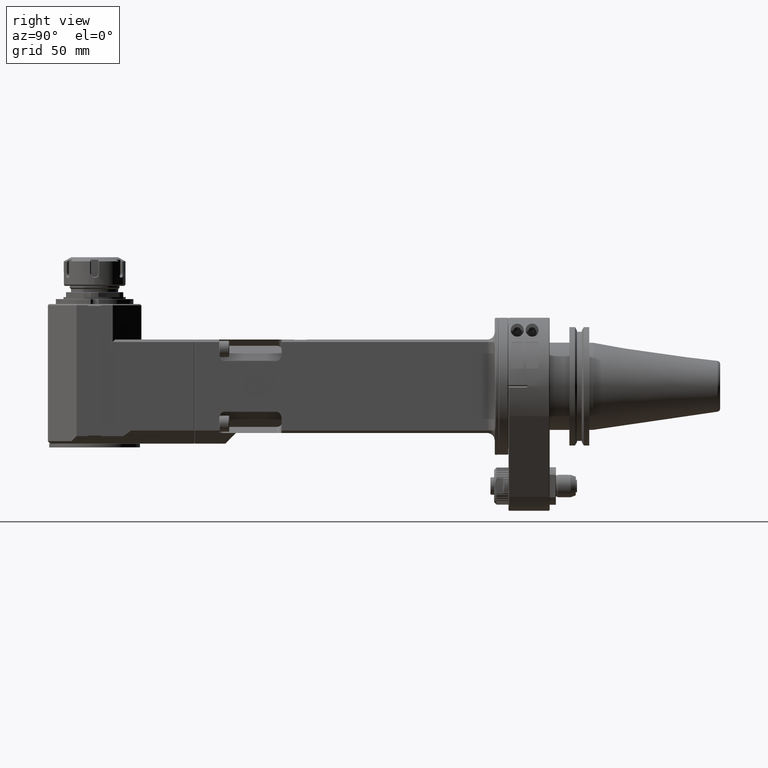
[diagram: clean part render]
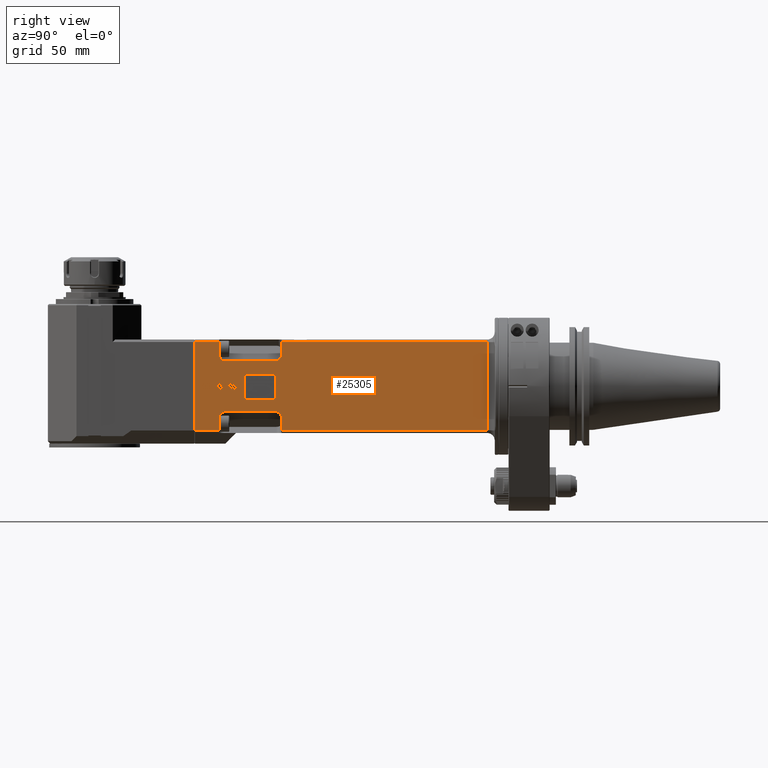
[diagram: same view with one face highlighted and labeled with its STEP entity id]
A machine part, right view. The second image highlights one B-rep face of the part: STEP entity #25305.
In plain terms, the highlighted planar face has unit normal (1, 0, -0).
Its self-contained STEP definition (entity closure, byte-faithful):
#443=ELLIPSE('',#27050,5.65685424949238,4.);
#444=ELLIPSE('',#27051,5.65685424949238,4.);
#445=ELLIPSE('',#27052,5.65685424949238,4.);
#446=ELLIPSE('',#27053,5.65685424949238,4.);
#447=ELLIPSE('',#27054,15.6597586137708,5.11067427372235);
#448=ELLIPSE('',#27055,63.0171389713676,10.6812482602766);
#449=ELLIPSE('',#27056,211.184832916971,20.2645928156447);
#450=ELLIPSE('',#27057,20.8021242351383,6.87575692583622);
#451=ELLIPSE('',#27058,2237.01354336817,62.4737983751614);
#452=ELLIPSE('',#27059,11.3334341898625,4.02425684300595);
#453=ELLIPSE('',#27060,21.5383808731348,3.9889650199828);
#454=ELLIPSE('',#27061,12.4227730511275,3.72513753825433);
#455=ELLIPSE('',#27062,515.432604065551,25.2864618681669);
#456=ELLIPSE('',#27063,20.7501760266395,4.72923969705623);
#457=ELLIPSE('',#27064,242.588961909696,18.9024033253464);
#458=ELLIPSE('',#27065,181.594066801803,9.83682545597316);
#459=ELLIPSE('',#27066,21.586435296731,3.7840306910963);
#460=ELLIPSE('',#27067,5.2992044251624,1.45810031590731);
#461=ELLIPSE('',#27068,105.663610139244,10.2892400435794);
#462=ELLIPSE('',#27069,9.56496345655275,3.21181826487127);
#463=ELLIPSE('',#27070,18.9053724432897,3.04635732493394);
#464=ELLIPSE('',#27071,45.9855523027786,6.85688270045976);
#465=ELLIPSE('',#27072,84.4286272446163,9.77996875638424);
#466=ELLIPSE('',#27073,61.1929984273283,7.71503504678625);
#467=ELLIPSE('',#27074,16.6379738504012,4.02963895603252);
#468=ELLIPSE('',#27075,93.3240955543924,9.60826771059708);
#469=ELLIPSE('',#27076,17.274533101145,2.68497790857421);
#470=ELLIPSE('',#27077,12.4167221570186,1.2714329716092);
#471=ELLIPSE('',#27078,14.8700543941453,3.49903198043268);
#472=ELLIPSE('',#27079,22.459113326356,4.07782101524966);
#473=ELLIPSE('',#27080,24.6421440174362,5.18209614968468);
#474=ELLIPSE('',#27081,59.6206907883007,8.23521548061957);
#475=ELLIPSE('',#27082,18.8079905720247,4.3386467912818);
#476=ELLIPSE('',#27083,61.1250199671475,9.58255724892328);
#477=ELLIPSE('',#27084,20.6181651526823,1.98883456680425);
#478=ELLIPSE('',#27085,3.47595638104611,0.110234774898915);
#479=ELLIPSE('',#27086,61.2248063631608,7.71703489786113);
#480=ELLIPSE('',#27087,16.6347550641683,4.02925330892726);
#481=ELLIPSE('',#27088,93.4088466089651,9.61267380369615);
#482=ELLIPSE('',#27089,216.491307017669,16.92873238245);
#483=ELLIPSE('',#27090,205.603863711571,11.1160686660709);
#484=ELLIPSE('',#27091,10.6036221588345,2.7546417543984);
#485=ELLIPSE('',#27092,10.4467640142544,2.98992445794681);
#486=ELLIPSE('',#27093,9.61557547637801,2.59206411765874);
#487=ELLIPSE('',#27094,14.2122497924354,2.9912738834623);
#488=ELLIPSE('',#27095,41.5621693362044,6.74851297665693);
#489=ELLIPSE('',#27096,29.0296168580593,5.5810162664177);
#490=ELLIPSE('',#27097,32.5884442249544,6.2891365587034);
#491=ELLIPSE('',#27098,16.9676813427654,4.30147971403748);
#492=ELLIPSE('',#27099,12.8536972838818,3.65993997888582);
#493=ELLIPSE('',#27100,5.94785494047754,2.14140818805179);
#494=ELLIPSE('',#27101,2.41229126850694,1.57006677064862);
#495=ELLIPSE('',#27102,69.2772808161666,10.0270410719038);
#496=ELLIPSE('',#27103,216.491307948523,16.9287324188656);
#497=ELLIPSE('',#27104,205.603863666063,11.1160686648385);
#498=ELLIPSE('',#27105,10.6175439547712,2.75643618418667);
#499=ELLIPSE('',#27106,10.4467640107867,2.98992445744263);
#500=ELLIPSE('',#27107,9.61557548505308,2.59206411883322);
#501=ELLIPSE('',#27108,14.2122498260303,2.99127388711941);
#502=ELLIPSE('',#27109,41.6636611569584,6.75676789639757);
#503=ELLIPSE('',#27110,29.0264550482812,5.58070303574778);
#504=ELLIPSE('',#27111,32.5480560844795,6.28527398974016);
#505=ELLIPSE('',#27112,16.9338491097883,4.29728263166024);
#506=ELLIPSE('',#27113,12.8635486466093,3.66130942758725);
#507=ELLIPSE('',#27114,5.95222622347425,2.14217682515007);
#508=ELLIPSE('',#27115,2.41310055265665,1.57028709180549);
#509=ELLIPSE('',#27116,69.3607538912344,10.0330360540755);
#510=ELLIPSE('',#27117,17.2749645836726,2.68501506493028);
#511=ELLIPSE('',#27118,12.4203850873891,1.2716265656971);
#512=ELLIPSE('',#27119,14.8773889441717,3.49985475062914);
#513=ELLIPSE('',#27120,22.475075967551,4.07924525511387);
#514=ELLIPSE('',#27121,24.637901738228,5.18163234999595);
#515=ELLIPSE('',#27122,59.8212932230837,8.24905434017942);
#516=ELLIPSE('',#27123,18.8083565555068,4.33869389179221);
#517=ELLIPSE('',#27124,61.2110688805257,9.58927818373487);
#518=ELLIPSE('',#27125,20.6176658368536,1.98879916829787);
#519=ELLIPSE('',#27126,3.47674677436192,0.110253526851791);
#771=B_SPLINE_CURVE_WITH_KNOTS('',3,(#39105,#39106,#39107,#39108),
 .UNSPECIFIED.,.F.,.F.,(4,4),(0.,1.),.UNSPECIFIED.);
#772=B_SPLINE_CURVE_WITH_KNOTS('',3,(#39110,#39111,#39112,#39113),
 .UNSPECIFIED.,.F.,.F.,(4,4),(0.,1.),.UNSPECIFIED.);
#773=B_SPLINE_CURVE_WITH_KNOTS('',3,(#39121,#39122,#39123,#39124),
 .UNSPECIFIED.,.F.,.F.,(4,4),(0.,1.),.UNSPECIFIED.);
#774=B_SPLINE_CURVE_WITH_KNOTS('',3,(#39130,#39131,#39132,#39133),
 .UNSPECIFIED.,.F.,.F.,(4,4),(0.,1.),.UNSPECIFIED.);
#775=B_SPLINE_CURVE_WITH_KNOTS('',3,(#39139,#39140,#39141,#39142),
 .UNSPECIFIED.,.F.,.F.,(4,4),(0.,1.),.UNSPECIFIED.);
#776=B_SPLINE_CURVE_WITH_KNOTS('',3,(#39144,#39145,#39146,#39147),
 .UNSPECIFIED.,.F.,.F.,(4,4),(0.,1.),.UNSPECIFIED.);
#777=B_SPLINE_CURVE_WITH_KNOTS('',3,(#39157,#39158,#39159,#39160),
 .UNSPECIFIED.,.F.,.F.,(4,4),(0.,1.),.UNSPECIFIED.);
#778=B_SPLINE_CURVE_WITH_KNOTS('',3,(#39162,#39163,#39164,#39165),
 .UNSPECIFIED.,.F.,.F.,(4,4),(0.,1.),.UNSPECIFIED.);
#779=B_SPLINE_CURVE_WITH_KNOTS('',3,(#39167,#39168,#39169,#39170),
 .UNSPECIFIED.,.F.,.F.,(4,4),(0.,1.),.UNSPECIFIED.);
#780=B_SPLINE_CURVE_WITH_KNOTS('',3,(#39172,#39173,#39174,#39175),
 .UNSPECIFIED.,.F.,.F.,(4,4),(0.,1.),.UNSPECIFIED.);
#781=B_SPLINE_CURVE_WITH_KNOTS('',3,(#39179,#39180,#39181,#39182),
 .UNSPECIFIED.,.F.,.F.,(4,4),(0.,1.),.UNSPECIFIED.);
#782=B_SPLINE_CURVE_WITH_KNOTS('',3,(#39192,#39193,#39194,#39195),
 .UNSPECIFIED.,.F.,.F.,(4,4),(0.,1.),.UNSPECIFIED.);
#783=B_SPLINE_CURVE_WITH_KNOTS('',3,(#39199,#39200,#39201,#39202),
 .UNSPECIFIED.,.F.,.F.,(4,4),(0.,1.),.UNSPECIFIED.);
#784=B_SPLINE_CURVE_WITH_KNOTS('',3,(#39204,#39205,#39206,#39207),
 .UNSPECIFIED.,.F.,.F.,(4,4),(0.,1.),.UNSPECIFIED.);
#785=B_SPLINE_CURVE_WITH_KNOTS('',3,(#39211,#39212,#39213,#39214),
 .UNSPECIFIED.,.F.,.F.,(4,4),(0.,1.),.UNSPECIFIED.);
#786=B_SPLINE_CURVE_WITH_KNOTS('',3,(#39216,#39217,#39218,#39219),
 .UNSPECIFIED.,.F.,.F.,(4,4),(0.,1.),.UNSPECIFIED.);
#787=B_SPLINE_CURVE_WITH_KNOTS('',3,(#39221,#39222,#39223,#39224),
 .UNSPECIFIED.,.F.,.F.,(4,4),(0.,1.),.UNSPECIFIED.);
#788=B_SPLINE_CURVE_WITH_KNOTS('',3,(#39228,#39229,#39230,#39231),
 .UNSPECIFIED.,.F.,.F.,(4,4),(0.,1.),.UNSPECIFIED.);
#789=B_SPLINE_CURVE_WITH_KNOTS('',3,(#39235,#39236,#39237,#39238),
 .UNSPECIFIED.,.F.,.F.,(4,4),(0.,1.),.UNSPECIFIED.);
#790=B_SPLINE_CURVE_WITH_KNOTS('',3,(#39243,#39244,#39245,#39246),
 .UNSPECIFIED.,.F.,.F.,(4,4),(0.,1.),.UNSPECIFIED.);
#791=B_SPLINE_CURVE_WITH_KNOTS('',3,(#39249,#39250,#39251,#39252),
 .UNSPECIFIED.,.F.,.F.,(4,4),(0.,1.),.UNSPECIFIED.);
#792=B_SPLINE_CURVE_WITH_KNOTS('',3,(#39254,#39255,#39256,#39257),
 .UNSPECIFIED.,.F.,.F.,(4,4),(0.,1.),.UNSPECIFIED.);
#793=B_SPLINE_CURVE_WITH_KNOTS('',3,(#39265,#39266,#39267,#39268),
 .UNSPECIFIED.,.F.,.F.,(4,4),(0.,1.),.UNSPECIFIED.);
#794=B_SPLINE_CURVE_WITH_KNOTS('',3,(#39270,#39271,#39272,#39273),
 .UNSPECIFIED.,.F.,.F.,(4,4),(0.,1.),.UNSPECIFIED.);
#795=B_SPLINE_CURVE_WITH_KNOTS('',3,(#39274,#39275,#39276,#39277),
 .UNSPECIFIED.,.F.,.F.,(4,4),(0.,1.),.UNSPECIFIED.);
#796=B_SPLINE_CURVE_WITH_KNOTS('',3,(#39294,#39295,#39296,#39297),
 .UNSPECIFIED.,.F.,.F.,(4,4),(0.,1.),.UNSPECIFIED.);
#797=B_SPLINE_CURVE_WITH_KNOTS('',3,(#39305,#39306,#39307,#39308),
 .UNSPECIFIED.,.F.,.F.,(4,4),(0.,1.),.UNSPECIFIED.);
#798=B_SPLINE_CURVE_WITH_KNOTS('',3,(#39310,#39311,#39312,#39313),
 .UNSPECIFIED.,.F.,.F.,(4,4),(0.,1.),.UNSPECIFIED.);
#799=B_SPLINE_CURVE_WITH_KNOTS('',3,(#39315,#39316,#39317,#39318),
 .UNSPECIFIED.,.F.,.F.,(4,4),(0.,1.),.UNSPECIFIED.);
#800=B_SPLINE_CURVE_WITH_KNOTS('',3,(#39332,#39333,#39334,#39335),
 .UNSPECIFIED.,.F.,.F.,(4,4),(0.,1.),.UNSPECIFIED.);
#801=B_SPLINE_CURVE_WITH_KNOTS('',3,(#39340,#39341,#39342,#39343),
 .UNSPECIFIED.,.F.,.F.,(4,4),(0.,1.),.UNSPECIFIED.);
#802=B_SPLINE_CURVE_WITH_KNOTS('',3,(#39346,#39347,#39348,#39349),
 .UNSPECIFIED.,.F.,.F.,(4,4),(0.,1.),.UNSPECIFIED.);
#803=B_SPLINE_CURVE_WITH_KNOTS('',3,(#39351,#39352,#39353,#39354),
 .UNSPECIFIED.,.F.,.F.,(4,4),(0.,1.),.UNSPECIFIED.);
#804=B_SPLINE_CURVE_WITH_KNOTS('',3,(#39362,#39363,#39364,#39365),
 .UNSPECIFIED.,.F.,.F.,(4,4),(0.,1.),.UNSPECIFIED.);
#805=B_SPLINE_CURVE_WITH_KNOTS('',3,(#39367,#39368,#39369,#39370),
 .UNSPECIFIED.,.F.,.F.,(4,4),(0.,1.),.UNSPECIFIED.);
#806=B_SPLINE_CURVE_WITH_KNOTS('',3,(#39371,#39372,#39373,#39374),
 .UNSPECIFIED.,.F.,.F.,(4,4),(0.,1.),.UNSPECIFIED.);
#807=B_SPLINE_CURVE_WITH_KNOTS('',3,(#39405,#39406,#39407,#39408),
 .UNSPECIFIED.,.F.,.F.,(4,4),(0.,1.),.UNSPECIFIED.);
#808=B_SPLINE_CURVE_WITH_KNOTS('',3,(#39412,#39413,#39414,#39415),
 .UNSPECIFIED.,.F.,.F.,(4,4),(0.,1.),.UNSPECIFIED.);
#809=B_SPLINE_CURVE_WITH_KNOTS('',3,(#39417,#39418,#39419,#39420),
 .UNSPECIFIED.,.F.,.F.,(4,4),(0.,1.),.UNSPECIFIED.);
#810=B_SPLINE_CURVE_WITH_KNOTS('',3,(#39426,#39427,#39428,#39429),
 .UNSPECIFIED.,.F.,.F.,(4,4),(0.,1.),.UNSPECIFIED.);
#811=B_SPLINE_CURVE_WITH_KNOTS('',3,(#39431,#39432,#39433,#39434),
 .UNSPECIFIED.,.F.,.F.,(4,4),(0.,1.),.UNSPECIFIED.);
#812=B_SPLINE_CURVE_WITH_KNOTS('',3,(#39438,#39439,#39440,#39441),
 .UNSPECIFIED.,.F.,.F.,(4,4),(0.,1.),.UNSPECIFIED.);
#813=B_SPLINE_CURVE_WITH_KNOTS('',3,(#39443,#39444,#39445,#39446),
 .UNSPECIFIED.,.F.,.F.,(4,4),(0.,1.),.UNSPECIFIED.);
#814=B_SPLINE_CURVE_WITH_KNOTS('',3,(#39454,#39455,#39456,#39457),
 .UNSPECIFIED.,.F.,.F.,(4,4),(0.,1.),.UNSPECIFIED.);
#815=B_SPLINE_CURVE_WITH_KNOTS('',3,(#39469,#39470,#39471,#39472),
 .UNSPECIFIED.,.F.,.F.,(4,4),(0.,1.),.UNSPECIFIED.);
#816=B_SPLINE_CURVE_WITH_KNOTS('',3,(#39478,#39479,#39480,#39481),
 .UNSPECIFIED.,.F.,.F.,(4,4),(0.,1.),.UNSPECIFIED.);
#817=B_SPLINE_CURVE_WITH_KNOTS('',3,(#39482,#39483,#39484,#39485),
 .UNSPECIFIED.,.F.,.F.,(4,4),(0.,1.),.UNSPECIFIED.);
#818=B_SPLINE_CURVE_WITH_KNOTS('',3,(#39496,#39497,#39498,#39499),
 .UNSPECIFIED.,.F.,.F.,(4,4),(0.,1.),.UNSPECIFIED.);
#819=B_SPLINE_CURVE_WITH_KNOTS('',3,(#39503,#39504,#39505,#39506),
 .UNSPECIFIED.,.F.,.F.,(4,4),(0.,1.),.UNSPECIFIED.);
#820=B_SPLINE_CURVE_WITH_KNOTS('',3,(#39508,#39509,#39510,#39511),
 .UNSPECIFIED.,.F.,.F.,(4,4),(0.,1.),.UNSPECIFIED.);
#821=B_SPLINE_CURVE_WITH_KNOTS('',3,(#39517,#39518,#39519,#39520),
 .UNSPECIFIED.,.F.,.F.,(4,4),(0.,1.),.UNSPECIFIED.);
#822=B_SPLINE_CURVE_WITH_KNOTS('',3,(#39522,#39523,#39524,#39525),
 .UNSPECIFIED.,.F.,.F.,(4,4),(0.,1.),.UNSPECIFIED.);
#823=B_SPLINE_CURVE_WITH_KNOTS('',3,(#39529,#39530,#39531,#39532),
 .UNSPECIFIED.,.F.,.F.,(4,4),(0.,1.),.UNSPECIFIED.);
#824=B_SPLINE_CURVE_WITH_KNOTS('',3,(#39534,#39535,#39536,#39537),
 .UNSPECIFIED.,.F.,.F.,(4,4),(0.,1.),.UNSPECIFIED.);
#825=B_SPLINE_CURVE_WITH_KNOTS('',3,(#39545,#39546,#39547,#39548),
 .UNSPECIFIED.,.F.,.F.,(4,4),(0.,1.),.UNSPECIFIED.);
#826=B_SPLINE_CURVE_WITH_KNOTS('',3,(#39560,#39561,#39562,#39563),
 .UNSPECIFIED.,.F.,.F.,(4,4),(0.,1.),.UNSPECIFIED.);
#827=B_SPLINE_CURVE_WITH_KNOTS('',3,(#39569,#39570,#39571,#39572),
 .UNSPECIFIED.,.F.,.F.,(4,4),(0.,1.),.UNSPECIFIED.);
#828=B_SPLINE_CURVE_WITH_KNOTS('',3,(#39573,#39574,#39575,#39576),
 .UNSPECIFIED.,.F.,.F.,(4,4),(0.,1.),.UNSPECIFIED.);
#829=B_SPLINE_CURVE_WITH_KNOTS('',3,(#39585,#39586,#39587,#39588),
 .UNSPECIFIED.,.F.,.F.,(4,4),(0.,1.),.UNSPECIFIED.);
#830=B_SPLINE_CURVE_WITH_KNOTS('',3,(#39596,#39597,#39598,#39599),
 .UNSPECIFIED.,.F.,.F.,(4,4),(0.,1.),.UNSPECIFIED.);
#831=B_SPLINE_CURVE_WITH_KNOTS('',3,(#39601,#39602,#39603,#39604),
 .UNSPECIFIED.,.F.,.F.,(4,4),(0.,1.),.UNSPECIFIED.);
#832=B_SPLINE_CURVE_WITH_KNOTS('',3,(#39606,#39607,#39608,#39609),
 .UNSPECIFIED.,.F.,.F.,(4,4),(0.,1.),.UNSPECIFIED.);
#833=B_SPLINE_CURVE_WITH_KNOTS('',3,(#39623,#39624,#39625,#39626),
 .UNSPECIFIED.,.F.,.F.,(4,4),(0.,1.),.UNSPECIFIED.);
#834=B_SPLINE_CURVE_WITH_KNOTS('',3,(#39631,#39632,#39633,#39634),
 .UNSPECIFIED.,.F.,.F.,(4,4),(0.,1.),.UNSPECIFIED.);
#1728=LINE('',#38986,#3813);
#1755=LINE('',#39048,#3840);
#1756=LINE('',#39051,#3841);
#1757=LINE('',#39055,#3842);
#1758=LINE('',#39059,#3843);
#1759=LINE('',#39061,#3844);
#1760=LINE('',#39063,#3845);
#1761=LINE('',#39065,#3846);
#1762=LINE('',#39067,#3847);
#1763=LINE('',#39071,#3848);
#1764=LINE('',#39075,#3849);
#1765=LINE('',#39076,#3850);
#1766=LINE('',#39079,#3851);
#1767=LINE('',#39081,#3852);
#1768=LINE('',#39083,#3853);
#1769=LINE('',#39084,#3854);
#1770=LINE('',#39087,#3855);
#1771=LINE('',#39089,#3856);
#1772=LINE('',#39091,#3857);
#1773=LINE('',#39092,#3858);
#1774=LINE('',#39095,#3859);
#1775=LINE('',#39097,#3860);
#1776=LINE('',#39099,#3861);
#1777=LINE('',#39101,#3862);
#1778=LINE('',#39137,#3863);
#1779=LINE('',#39176,#3864);
#1780=LINE('',#39184,#3865);
#1781=LINE('',#39197,#3866);
#1782=LINE('',#39280,#3867);
#1783=LINE('',#39282,#3868);
#1784=LINE('',#39284,#3869);
#1785=LINE('',#39285,#3870);
#1786=LINE('',#39288,#3871);
#1787=LINE('',#39290,#3872);
#1788=LINE('',#39292,#3873);
#1789=LINE('',#39322,#3874);
#1790=LINE('',#39377,#3875);
#1791=LINE('',#39379,#3876);
#1792=LINE('',#39381,#3877);
#1793=LINE('',#39383,#3878);
#1794=LINE('',#39385,#3879);
#1795=LINE('',#39386,#3880);
#1796=LINE('',#39389,#3881);
#1797=LINE('',#39391,#3882);
#1798=LINE('',#39393,#3883);
#1799=LINE('',#39394,#3884);
#1800=LINE('',#39399,#3885);
#1801=LINE('',#39422,#3886);
#1802=LINE('',#39424,#3887);
#1803=LINE('',#39450,#3888);
#1804=LINE('',#39490,#3889);
#1805=LINE('',#39513,#3890);
#1806=LINE('',#39515,#3891);
#1807=LINE('',#39541,#3892);
#1808=LINE('',#39579,#3893);
#1809=LINE('',#39581,#3894);
#1810=LINE('',#39583,#3895);
#1811=LINE('',#39613,#3896);
#3813=VECTOR('',#30104,71.);
#3840=VECTOR('',#30157,19.5);
#3841=VECTOR('',#30160,9.313708498985);
#3842=VECTOR('',#30163,42.);
#3843=VECTOR('',#30166,9.313708498985);
#3844=VECTOR('',#30167,165.);
#3845=VECTOR('',#30168,71.);
#3846=VECTOR('',#30169,165.);
#3847=VECTOR('',#30170,9.313708498985);
#3848=VECTOR('',#30173,42.);
#3849=VECTOR('',#30176,9.313708498985);
#3850=VECTOR('',#30177,19.5);
#3851=VECTOR('',#30178,13.7664737594);
#3852=VECTOR('',#30179,25.01386601979);
#3853=VECTOR('',#30180,13.7664737594);
#3854=VECTOR('',#30181,25.01386601979);
#3855=VECTOR('',#30182,5.291002751506);
#3856=VECTOR('',#30183,25.0363228398);
#3857=VECTOR('',#30184,5.291002751506);
#3858=VECTOR('',#30185,25.0363228398);
#3859=VECTOR('',#30186,1.203956305981);
#3860=VECTOR('',#30187,0.5900408327579);
#3861=VECTOR('',#30188,1.73601962370604);
#3862=VECTOR('',#30189,1.858799308538);
#3863=VECTOR('',#30204,0.514464304002981);
#3864=VECTOR('',#30213,0.9311050921679);
#3865=VECTOR('',#30214,0.487375960250209);
#3866=VECTOR('',#30221,0.1227831840515);
#3867=VECTOR('',#30238,1.545020341873);
#3868=VECTOR('',#30239,0.6173260509968);
#3869=VECTOR('',#30240,1.545020341873);
#3870=VECTOR('',#30241,0.6173260509968);
#3871=VECTOR('',#30242,2.012279033661);
#3872=VECTOR('',#30243,0.5900409445167);
#3873=VECTOR('',#30244,2.711460590363);
#3874=VECTOR('',#30253,0.522451795575016);
#3875=VECTOR('',#30272,2.561392784119);
#3876=VECTOR('',#30273,5.);
#3877=VECTOR('',#30274,0.5422925949097);
#3878=VECTOR('',#30275,4.409959055483);
#3879=VECTOR('',#30276,2.019100189209);
#3880=VECTOR('',#30277,0.5900409445167);
#3881=VECTOR('',#30278,0.5729866027832);
#3882=VECTOR('',#30279,0.6991814821959);
#3883=VECTOR('',#30280,0.5729866027832);
#3884=VECTOR('',#30281,0.6991814821959);
#3885=VECTOR('',#30284,0.50800141277372);
#3886=VECTOR('',#30291,0.541991682601083);
#3887=VECTOR('',#30292,0.0787405156947035);
#3888=VECTOR('',#30297,0.513104995107587);
#3889=VECTOR('',#30316,0.50800141277372);
#3890=VECTOR('',#30323,0.541991682601083);
#3891=VECTOR('',#30324,0.0787405156947035);
#3892=VECTOR('',#30329,0.513104995107587);
#3893=VECTOR('',#30346,2.012276649475);
#3894=VECTOR('',#30347,0.5900409445167);
#3895=VECTOR('',#30348,2.711458206177);
#3896=VECTOR('',#30357,0.522451795575016);
#5932=FACE_BOUND('',#7781,.T.);
#5933=FACE_BOUND('',#7782,.T.);
#5934=FACE_BOUND('',#7783,.T.);
#5935=FACE_BOUND('',#7784,.T.);
#5936=FACE_BOUND('',#7785,.T.);
#5937=FACE_BOUND('',#7786,.T.);
#5938=FACE_BOUND('',#7787,.T.);
#5939=FACE_BOUND('',#7788,.T.);
#5940=FACE_BOUND('',#7789,.T.);
#5941=FACE_BOUND('',#7790,.T.);
#5942=FACE_BOUND('',#7791,.T.);
#5943=FACE_BOUND('',#7792,.T.);
#5944=FACE_BOUND('',#7793,.T.);
#6248=FACE_OUTER_BOUND('',#7780,.T.);
#7780=EDGE_LOOP('',(#17555,#17556,#17557,#17558,#17559,#17560,#17561,#17562,
#17563,#17564,#17565,#17566,#17567,#17568,#17569,#17570));
#7781=EDGE_LOOP('',(#17571,#17572,#17573,#17574));
#7782=EDGE_LOOP('',(#17575,#17576,#17577,#17578));
#7783=EDGE_LOOP('',(#17579,#17580,#17581,#17582,#17583,#17584,#17585,#17586,
#17587,#17588,#17589,#17590,#17591,#17592,#17593,#17594,#17595,#17596,#17597,
#17598,#17599,#17600,#17601,#17602,#17603,#17604,#17605));
#7784=EDGE_LOOP('',(#17606,#17607,#17608,#17609,#17610,#17611,#17612,#17613,
#17614,#17615,#17616,#17617,#17618,#17619,#17620,#17621,#17622,#17623,#17624,
#17625));
#7785=EDGE_LOOP('',(#17626,#17627,#17628,#17629,#17630,#17631,#17632,#17633));
#7786=EDGE_LOOP('',(#17634,#17635,#17636,#17637));
#7787=EDGE_LOOP('',(#17638,#17639,#17640,#17641,#17642,#17643,#17644,#17645,
#17646,#17647,#17648,#17649,#17650,#17651,#17652,#17653,#17654,#17655,#17656,
#17657));
#7788=EDGE_LOOP('',(#17658,#17659,#17660,#17661,#17662,#17663,#17664,#17665));
#7789=EDGE_LOOP('',(#17666,#17667,#17668,#17669,#17670,#17671));
#7790=EDGE_LOOP('',(#17672,#17673,#17674,#17675));
#7791=EDGE_LOOP('',(#17676,#17677,#17678,#17679,#17680,#17681,#17682,#17683,
#17684,#17685,#17686,#17687,#17688,#17689,#17690,#17691,#17692,#17693,#17694,
#17695,#17696,#17697,#17698,#17699,#17700,#17701,#17702,#17703,#17704));
#7792=EDGE_LOOP('',(#17705,#17706,#17707,#17708,#17709,#17710,#17711,#17712,
#17713,#17714,#17715,#17716,#17717,#17718,#17719,#17720,#17721,#17722,#17723,
#17724,#17725,#17726,#17727,#17728,#17729,#17730,#17731,#17732,#17733));
#7793=EDGE_LOOP('',(#17734,#17735,#17736,#17737,#17738,#17739,#17740,#17741,
#17742,#17743,#17744,#17745,#17746,#17747,#17748,#17749,#17750,#17751,#17752,
#17753));
#10446=VERTEX_POINT('',#38981);
#10447=VERTEX_POINT('',#38985);
#10469=VERTEX_POINT('',#39046);
#10470=VERTEX_POINT('',#39050);
#10471=VERTEX_POINT('',#39052);
#10472=VERTEX_POINT('',#39054);
#10473=VERTEX_POINT('',#39056);
#10474=VERTEX_POINT('',#39058);
#10475=VERTEX_POINT('',#39060);
#10476=VERTEX_POINT('',#39062);
#10477=VERTEX_POINT('',#39064);
#10478=VERTEX_POINT('',#39066);
#10479=VERTEX_POINT('',#39068);
#10480=VERTEX_POINT('',#39070);
#10481=VERTEX_POINT('',#39072);
#10482=VERTEX_POINT('',#39074);
#10483=VERTEX_POINT('',#39077);
#10484=VERTEX_POINT('',#39078);
#10485=VERTEX_POINT('',#39080);
#10486=VERTEX_POINT('',#39082);
#10487=VERTEX_POINT('',#39085);
#10488=VERTEX_POINT('',#39086);
#10489=VERTEX_POINT('',#39088);
#10490=VERTEX_POINT('',#39090);
#10491=VERTEX_POINT('',#39093);
#10492=VERTEX_POINT('',#39094);
#10493=VERTEX_POINT('',#39096);
#10494=VERTEX_POINT('',#39098);
#10495=VERTEX_POINT('',#39100);
#10496=VERTEX_POINT('',#39102);
#10497=VERTEX_POINT('',#39104);
#10498=VERTEX_POINT('',#39109);
#10499=VERTEX_POINT('',#39114);
#10500=VERTEX_POINT('',#39116);
#10501=VERTEX_POINT('',#39118);
#10502=VERTEX_POINT('',#39120);
#10503=VERTEX_POINT('',#39125);
#10504=VERTEX_POINT('',#39127);
#10505=VERTEX_POINT('',#39129);
#10506=VERTEX_POINT('',#39134);
#10507=VERTEX_POINT('',#39136);
#10508=VERTEX_POINT('',#39138);
#10509=VERTEX_POINT('',#39143);
#10510=VERTEX_POINT('',#39148);
#10511=VERTEX_POINT('',#39150);
#10512=VERTEX_POINT('',#39152);
#10513=VERTEX_POINT('',#39154);
#10514=VERTEX_POINT('',#39156);
#10515=VERTEX_POINT('',#39161);
#10516=VERTEX_POINT('',#39166);
#10517=VERTEX_POINT('',#39171);
#10518=VERTEX_POINT('',#39177);
#10519=VERTEX_POINT('',#39178);
#10520=VERTEX_POINT('',#39183);
#10521=VERTEX_POINT('',#39185);
#10522=VERTEX_POINT('',#39187);
#10523=VERTEX_POINT('',#39189);
#10524=VERTEX_POINT('',#39191);
#10525=VERTEX_POINT('',#39196);
#10526=VERTEX_POINT('',#39198);
#10527=VERTEX_POINT('',#39203);
#10528=VERTEX_POINT('',#39208);
#10529=VERTEX_POINT('',#39210);
#10530=VERTEX_POINT('',#39215);
#10531=VERTEX_POINT('',#39220);
#10532=VERTEX_POINT('',#39225);
#10533=VERTEX_POINT('',#39227);
#10534=VERTEX_POINT('',#39232);
#10535=VERTEX_POINT('',#39234);
#10536=VERTEX_POINT('',#39239);
#10537=VERTEX_POINT('',#39241);
#10538=VERTEX_POINT('',#39247);
#10539=VERTEX_POINT('',#39248);
#10540=VERTEX_POINT('',#39253);
#10541=VERTEX_POINT('',#39258);
#10542=VERTEX_POINT('',#39260);
#10543=VERTEX_POINT('',#39262);
#10544=VERTEX_POINT('',#39264);
#10545=VERTEX_POINT('',#39269);
#10546=VERTEX_POINT('',#39278);
#10547=VERTEX_POINT('',#39279);
#10548=VERTEX_POINT('',#39281);
#10549=VERTEX_POINT('',#39283);
#10550=VERTEX_POINT('',#39286);
#10551=VERTEX_POINT('',#39287);
#10552=VERTEX_POINT('',#39289);
#10553=VERTEX_POINT('',#39291);
#10554=VERTEX_POINT('',#39293);
#10555=VERTEX_POINT('',#39298);
#10556=VERTEX_POINT('',#39300);
#10557=VERTEX_POINT('',#39302);
#10558=VERTEX_POINT('',#39304);
#10559=VERTEX_POINT('',#39309);
#10560=VERTEX_POINT('',#39314);
#10561=VERTEX_POINT('',#39319);
#10562=VERTEX_POINT('',#39321);
#10563=VERTEX_POINT('',#39323);
#10564=VERTEX_POINT('',#39325);
#10565=VERTEX_POINT('',#39327);
#10566=VERTEX_POINT('',#39329);
#10567=VERTEX_POINT('',#39331);
#10568=VERTEX_POINT('',#39336);
#10569=VERTEX_POINT('',#39338);
#10570=VERTEX_POINT('',#39344);
#10571=VERTEX_POINT('',#39345);
#10572=VERTEX_POINT('',#39350);
#10573=VERTEX_POINT('',#39355);
#10574=VERTEX_POINT('',#39357);
#10575=VERTEX_POINT('',#39359);
#10576=VERTEX_POINT('',#39361);
#10577=VERTEX_POINT('',#39366);
#10578=VERTEX_POINT('',#39375);
#10579=VERTEX_POINT('',#39376);
#10580=VERTEX_POINT('',#39378);
#10581=VERTEX_POINT('',#39380);
#10582=VERTEX_POINT('',#39382);
#10583=VERTEX_POINT('',#39384);
#10584=VERTEX_POINT('',#39387);
#10585=VERTEX_POINT('',#39388);
#10586=VERTEX_POINT('',#39390);
#10587=VERTEX_POINT('',#39392);
#10588=VERTEX_POINT('',#39395);
#10589=VERTEX_POINT('',#39396);
#10590=VERTEX_POINT('',#39398);
#10591=VERTEX_POINT('',#39400);
#10592=VERTEX_POINT('',#39402);
#10593=VERTEX_POINT('',#39404);
#10594=VERTEX_POINT('',#39409);
#10595=VERTEX_POINT('',#39411);
#10596=VERTEX_POINT('',#39416);
#10597=VERTEX_POINT('',#39421);
#10598=VERTEX_POINT('',#39423);
#10599=VERTEX_POINT('',#39425);
#10600=VERTEX_POINT('',#39430);
#10601=VERTEX_POINT('',#39435);
#10602=VERTEX_POINT('',#39437);
#10603=VERTEX_POINT('',#39442);
#10604=VERTEX_POINT('',#39447);
#10605=VERTEX_POINT('',#39449);
#10606=VERTEX_POINT('',#39451);
#10607=VERTEX_POINT('',#39453);
#10608=VERTEX_POINT('',#39458);
#10609=VERTEX_POINT('',#39460);
#10610=VERTEX_POINT('',#39462);
#10611=VERTEX_POINT('',#39464);
#10612=VERTEX_POINT('',#39466);
#10613=VERTEX_POINT('',#39468);
#10614=VERTEX_POINT('',#39473);
#10615=VERTEX_POINT('',#39475);
#10616=VERTEX_POINT('',#39477);
#10617=VERTEX_POINT('',#39486);
#10618=VERTEX_POINT('',#39487);
#10619=VERTEX_POINT('',#39489);
#10620=VERTEX_POINT('',#39491);
#10621=VERTEX_POINT('',#39493);
#10622=VERTEX_POINT('',#39495);
#10623=VERTEX_POINT('',#39500);
#10624=VERTEX_POINT('',#39502);
#10625=VERTEX_POINT('',#39507);
#10626=VERTEX_POINT('',#39512);
#10627=VERTEX_POINT('',#39514);
#10628=VERTEX_POINT('',#39516);
#10629=VERTEX_POINT('',#39521);
#10630=VERTEX_POINT('',#39526);
#10631=VERTEX_POINT('',#39528);
#10632=VERTEX_POINT('',#39533);
#10633=VERTEX_POINT('',#39538);
#10634=VERTEX_POINT('',#39540);
#10635=VERTEX_POINT('',#39542);
#10636=VERTEX_POINT('',#39544);
#10637=VERTEX_POINT('',#39549);
#10638=VERTEX_POINT('',#39551);
#10639=VERTEX_POINT('',#39553);
#10640=VERTEX_POINT('',#39555);
#10641=VERTEX_POINT('',#39557);
#10642=VERTEX_POINT('',#39559);
#10643=VERTEX_POINT('',#39564);
#10644=VERTEX_POINT('',#39566);
#10645=VERTEX_POINT('',#39568);
#10646=VERTEX_POINT('',#39577);
#10647=VERTEX_POINT('',#39578);
#10648=VERTEX_POINT('',#39580);
#10649=VERTEX_POINT('',#39582);
#10650=VERTEX_POINT('',#39584);
#10651=VERTEX_POINT('',#39589);
#10652=VERTEX_POINT('',#39591);
#10653=VERTEX_POINT('',#39593);
#10654=VERTEX_POINT('',#39595);
#10655=VERTEX_POINT('',#39600);
#10656=VERTEX_POINT('',#39605);
#10657=VERTEX_POINT('',#39610);
#10658=VERTEX_POINT('',#39612);
#10659=VERTEX_POINT('',#39614);
#10660=VERTEX_POINT('',#39616);
#10661=VERTEX_POINT('',#39618);
#10662=VERTEX_POINT('',#39620);
#10663=VERTEX_POINT('',#39622);
#10664=VERTEX_POINT('',#39627);
#10665=VERTEX_POINT('',#39629);
#13176=EDGE_CURVE('',#10446,#10447,#1728,.T.);
#13208=EDGE_CURVE('',#10446,#10469,#1755,.T.);
#13209=EDGE_CURVE('',#10469,#10470,#1756,.T.);
#13210=EDGE_CURVE('',#10470,#10471,#443,.T.);
#13211=EDGE_CURVE('',#10472,#10471,#1757,.T.);
#13212=EDGE_CURVE('',#10472,#10473,#444,.T.);
#13213=EDGE_CURVE('',#10474,#10473,#1758,.T.);
#13214=EDGE_CURVE('',#10474,#10475,#1759,.T.);
#13215=EDGE_CURVE('',#10475,#10476,#1760,.T.);
#13216=EDGE_CURVE('',#10477,#10476,#1761,.T.);
#13217=EDGE_CURVE('',#10477,#10478,#1762,.T.);
#13218=EDGE_CURVE('',#10478,#10479,#445,.T.);
#13219=EDGE_CURVE('',#10479,#10480,#1763,.T.);
#13220=EDGE_CURVE('',#10480,#10481,#446,.T.);
#13221=EDGE_CURVE('',#10482,#10481,#1764,.T.);
#13222=EDGE_CURVE('',#10447,#10482,#1765,.T.);
#13223=EDGE_CURVE('',#10483,#10484,#1766,.T.);
#13224=EDGE_CURVE('',#10485,#10483,#1767,.T.);
#13225=EDGE_CURVE('',#10486,#10485,#1768,.T.);
#13226=EDGE_CURVE('',#10484,#10486,#1769,.T.);
#13227=EDGE_CURVE('',#10487,#10488,#1770,.T.);
#13228=EDGE_CURVE('',#10489,#10487,#1771,.T.);
#13229=EDGE_CURVE('',#10490,#10489,#1772,.T.);
#13230=EDGE_CURVE('',#10488,#10490,#1773,.T.);
#13231=EDGE_CURVE('',#10491,#10492,#1774,.T.);
#13232=EDGE_CURVE('',#10493,#10491,#1775,.T.);
#13233=EDGE_CURVE('',#10494,#10493,#1776,.T.);
#13234=EDGE_CURVE('',#10495,#10494,#1777,.T.);
#13235=EDGE_CURVE('',#10496,#10495,#447,.T.);
#13236=EDGE_CURVE('',#10497,#10496,#771,.T.);
#13237=EDGE_CURVE('',#10498,#10497,#772,.T.);
#13238=EDGE_CURVE('',#10499,#10498,#448,.T.);
#13239=EDGE_CURVE('',#10500,#10499,#449,.T.);
#13240=EDGE_CURVE('',#10501,#10500,#450,.T.);
#13241=EDGE_CURVE('',#10502,#10501,#773,.T.);
#13242=EDGE_CURVE('',#10503,#10502,#451,.T.);
#13243=EDGE_CURVE('',#10504,#10503,#452,.T.);
#13244=EDGE_CURVE('',#10505,#10504,#774,.T.);
#13245=EDGE_CURVE('',#10506,#10505,#453,.T.);
#13246=EDGE_CURVE('',#10507,#10506,#1778,.T.);
#13247=EDGE_CURVE('',#10508,#10507,#775,.T.);
#13248=EDGE_CURVE('',#10509,#10508,#776,.T.);
#13249=EDGE_CURVE('',#10510,#10509,#454,.T.);
#13250=EDGE_CURVE('',#10511,#10510,#455,.T.);
#13251=EDGE_CURVE('',#10512,#10511,#456,.T.);
#13252=EDGE_CURVE('',#10513,#10512,#457,.T.);
#13253=EDGE_CURVE('',#10514,#10513,#777,.T.);
#13254=EDGE_CURVE('',#10515,#10514,#778,.T.);
#13255=EDGE_CURVE('',#10516,#10515,#779,.T.);
#13256=EDGE_CURVE('',#10517,#10516,#780,.T.);
#13257=EDGE_CURVE('',#10492,#10517,#1779,.T.);
#13258=EDGE_CURVE('',#10518,#10519,#781,.T.);
#13259=EDGE_CURVE('',#10520,#10518,#1780,.T.);
#13260=EDGE_CURVE('',#10521,#10520,#458,.T.);
#13261=EDGE_CURVE('',#10522,#10521,#459,.T.);
#13262=EDGE_CURVE('',#10523,#10522,#460,.T.);
#13263=EDGE_CURVE('',#10524,#10523,#782,.T.);
#13264=EDGE_CURVE('',#10525,#10524,#1781,.T.);
#13265=EDGE_CURVE('',#10526,#10525,#783,.T.);
#13266=EDGE_CURVE('',#10527,#10526,#784,.T.);
#13267=EDGE_CURVE('',#10528,#10527,#461,.T.);
#13268=EDGE_CURVE('',#10529,#10528,#785,.T.);
#13269=EDGE_CURVE('',#10530,#10529,#786,.T.);
#13270=EDGE_CURVE('',#10531,#10530,#787,.T.);
#13271=EDGE_CURVE('',#10532,#10531,#462,.T.);
#13272=EDGE_CURVE('',#10533,#10532,#788,.T.);
#13273=EDGE_CURVE('',#10534,#10533,#463,.T.);
#13274=EDGE_CURVE('',#10535,#10534,#789,.T.);
#13275=EDGE_CURVE('',#10536,#10535,#464,.T.);
#13276=EDGE_CURVE('',#10537,#10536,#465,.T.);
#13277=EDGE_CURVE('',#10519,#10537,#790,.T.);
#13278=EDGE_CURVE('',#10538,#10539,#791,.T.);
#13279=EDGE_CURVE('',#10540,#10538,#792,.T.);
#13280=EDGE_CURVE('',#10541,#10540,#466,.T.);
#13281=EDGE_CURVE('',#10542,#10541,#467,.T.);
#13282=EDGE_CURVE('',#10543,#10542,#468,.T.);
#13283=EDGE_CURVE('',#10544,#10543,#793,.T.);
#13284=EDGE_CURVE('',#10545,#10544,#794,.T.);
#13285=EDGE_CURVE('',#10539,#10545,#795,.T.);
#13286=EDGE_CURVE('',#10546,#10547,#1782,.T.);
#13287=EDGE_CURVE('',#10548,#10546,#1783,.T.);
#13288=EDGE_CURVE('',#10549,#10548,#1784,.T.);
#13289=EDGE_CURVE('',#10547,#10549,#1785,.T.);
#13290=EDGE_CURVE('',#10550,#10551,#1786,.T.);
#13291=EDGE_CURVE('',#10552,#10550,#1787,.T.);
#13292=EDGE_CURVE('',#10553,#10552,#1788,.T.);
#13293=EDGE_CURVE('',#10554,#10553,#796,.T.);
#13294=EDGE_CURVE('',#10555,#10554,#469,.T.);
#13295=EDGE_CURVE('',#10556,#10555,#470,.T.);
#13296=EDGE_CURVE('',#10557,#10556,#471,.T.);
#13297=EDGE_CURVE('',#10558,#10557,#797,.T.);
#13298=EDGE_CURVE('',#10559,#10558,#798,.T.);
#13299=EDGE_CURVE('',#10560,#10559,#799,.T.);
#13300=EDGE_CURVE('',#10561,#10560,#472,.T.);
#13301=EDGE_CURVE('',#10562,#10561,#1789,.T.);
#13302=EDGE_CURVE('',#10563,#10562,#473,.T.);
#13303=EDGE_CURVE('',#10564,#10563,#474,.T.);
#13304=EDGE_CURVE('',#10565,#10564,#475,.T.);
#13305=EDGE_CURVE('',#10566,#10565,#476,.T.);
#13306=EDGE_CURVE('',#10567,#10566,#800,.T.);
#13307=EDGE_CURVE('',#10568,#10567,#477,.T.);
#13308=EDGE_CURVE('',#10569,#10568,#478,.T.);
#13309=EDGE_CURVE('',#10551,#10569,#801,.T.);
#13310=EDGE_CURVE('',#10570,#10571,#802,.T.);
#13311=EDGE_CURVE('',#10572,#10570,#803,.T.);
#13312=EDGE_CURVE('',#10573,#10572,#479,.T.);
#13313=EDGE_CURVE('',#10574,#10573,#480,.T.);
#13314=EDGE_CURVE('',#10575,#10574,#481,.T.);
#13315=EDGE_CURVE('',#10576,#10575,#804,.T.);
#13316=EDGE_CURVE('',#10577,#10576,#805,.T.);
#13317=EDGE_CURVE('',#10571,#10577,#806,.T.);
#13318=EDGE_CURVE('',#10578,#10579,#1790,.T.);
#13319=EDGE_CURVE('',#10580,#10578,#1791,.T.);
#13320=EDGE_CURVE('',#10581,#10580,#1792,.T.);
#13321=EDGE_CURVE('',#10582,#10581,#1793,.T.);
#13322=EDGE_CURVE('',#10583,#10582,#1794,.T.);
#13323=EDGE_CURVE('',#10579,#10583,#1795,.T.);
#13324=EDGE_CURVE('',#10584,#10585,#1796,.T.);
#13325=EDGE_CURVE('',#10586,#10584,#1797,.T.);
#13326=EDGE_CURVE('',#10587,#10586,#1798,.T.);
#13327=EDGE_CURVE('',#10585,#10587,#1799,.T.);
#13328=EDGE_CURVE('',#10588,#10589,#482,.T.);
#13329=EDGE_CURVE('',#10590,#10588,#1800,.T.);
#13330=EDGE_CURVE('',#10591,#10590,#483,.T.);
#13331=EDGE_CURVE('',#10592,#10591,#484,.T.);
#13332=EDGE_CURVE('',#10593,#10592,#807,.T.);
#13333=EDGE_CURVE('',#10594,#10593,#485,.T.);
#13334=EDGE_CURVE('',#10595,#10594,#808,.T.);
#13335=EDGE_CURVE('',#10596,#10595,#809,.T.);
#13336=EDGE_CURVE('',#10597,#10596,#1801,.T.);
#13337=EDGE_CURVE('',#10598,#10597,#1802,.T.);
#13338=EDGE_CURVE('',#10599,#10598,#810,.T.);
#13339=EDGE_CURVE('',#10600,#10599,#811,.T.);
#13340=EDGE_CURVE('',#10601,#10600,#486,.T.);
#13341=EDGE_CURVE('',#10602,#10601,#812,.T.);
#13342=EDGE_CURVE('',#10603,#10602,#813,.T.);
#13343=EDGE_CURVE('',#10604,#10603,#487,.T.);
#13344=EDGE_CURVE('',#10605,#10604,#1803,.T.);
#13345=EDGE_CURVE('',#10606,#10605,#488,.T.);
#13346=EDGE_CURVE('',#10607,#10606,#814,.T.);
#13347=EDGE_CURVE('',#10608,#10607,#489,.T.);
#13348=EDGE_CURVE('',#10609,#10608,#490,.T.);
#13349=EDGE_CURVE('',#10610,#10609,#491,.T.);
#13350=EDGE_CURVE('',#10611,#10610,#492,.T.);
#13351=EDGE_CURVE('',#10612,#10611,#493,.T.);
#13352=EDGE_CURVE('',#10613,#10612,#815,.T.);
#13353=EDGE_CURVE('',#10614,#10613,#494,.T.);
#13354=EDGE_CURVE('',#10615,#10614,#495,.T.);
#13355=EDGE_CURVE('',#10616,#10615,#816,.T.);
#13356=EDGE_CURVE('',#10589,#10616,#817,.T.);
#13357=EDGE_CURVE('',#10617,#10618,#496,.T.);
#13358=EDGE_CURVE('',#10619,#10617,#1804,.T.);
#13359=EDGE_CURVE('',#10620,#10619,#497,.T.);
#13360=EDGE_CURVE('',#10621,#10620,#498,.T.);
#13361=EDGE_CURVE('',#10622,#10621,#818,.T.);
#13362=EDGE_CURVE('',#10623,#10622,#499,.T.);
#13363=EDGE_CURVE('',#10624,#10623,#819,.T.);
#13364=EDGE_CURVE('',#10625,#10624,#820,.T.);
#13365=EDGE_CURVE('',#10626,#10625,#1805,.T.);
#13366=EDGE_CURVE('',#10627,#10626,#1806,.T.);
#13367=EDGE_CURVE('',#10628,#10627,#821,.T.);
#13368=EDGE_CURVE('',#10629,#10628,#822,.T.);
#13369=EDGE_CURVE('',#10630,#10629,#500,.T.);
#13370=EDGE_CURVE('',#10631,#10630,#823,.T.);
#13371=EDGE_CURVE('',#10632,#10631,#824,.T.);
#13372=EDGE_CURVE('',#10633,#10632,#501,.T.);
#13373=EDGE_CURVE('',#10634,#10633,#1807,.T.);
#13374=EDGE_CURVE('',#10635,#10634,#502,.T.);
#13375=EDGE_CURVE('',#10636,#10635,#825,.T.);
#13376=EDGE_CURVE('',#10637,#10636,#503,.T.);
#13377=EDGE_CURVE('',#10638,#10637,#504,.T.);
#13378=EDGE_CURVE('',#10639,#10638,#505,.T.);
#13379=EDGE_CURVE('',#10640,#10639,#506,.T.);
#13380=EDGE_CURVE('',#10641,#10640,#507,.T.);
#13381=EDGE_CURVE('',#10642,#10641,#826,.T.);
#13382=EDGE_CURVE('',#10643,#10642,#508,.T.);
#13383=EDGE_CURVE('',#10644,#10643,#509,.T.);
#13384=EDGE_CURVE('',#10645,#10644,#827,.T.);
#13385=EDGE_CURVE('',#10618,#10645,#828,.T.);
#13386=EDGE_CURVE('',#10646,#10647,#1808,.T.);
#13387=EDGE_CURVE('',#10648,#10646,#1809,.T.);
#13388=EDGE_CURVE('',#10649,#10648,#1810,.T.);
#13389=EDGE_CURVE('',#10650,#10649,#829,.T.);
#13390=EDGE_CURVE('',#10651,#10650,#510,.T.);
#13391=EDGE_CURVE('',#10652,#10651,#511,.T.);
#13392=EDGE_CURVE('',#10653,#10652,#512,.T.);
#13393=EDGE_CURVE('',#10654,#10653,#830,.T.);
#13394=EDGE_CURVE('',#10655,#10654,#831,.T.);
#13395=EDGE_CURVE('',#10656,#10655,#832,.T.);
#13396=EDGE_CURVE('',#10657,#10656,#513,.T.);
#13397=EDGE_CURVE('',#10658,#10657,#1811,.T.);
#13398=EDGE_CURVE('',#10659,#10658,#514,.T.);
#13399=EDGE_CURVE('',#10660,#10659,#515,.T.);
#13400=EDGE_CURVE('',#10661,#10660,#516,.T.);
#13401=EDGE_CURVE('',#10662,#10661,#517,.T.);
#13402=EDGE_CURVE('',#10663,#10662,#833,.T.);
#13403=EDGE_CURVE('',#10664,#10663,#518,.T.);
#13404=EDGE_CURVE('',#10665,#10664,#519,.T.);
#13405=EDGE_CURVE('',#10647,#10665,#834,.T.);
#17555=ORIENTED_EDGE('',*,*,#13176,.F.);
#17556=ORIENTED_EDGE('',*,*,#13208,.T.);
#17557=ORIENTED_EDGE('',*,*,#13209,.T.);
#17558=ORIENTED_EDGE('',*,*,#13210,.T.);
#17559=ORIENTED_EDGE('',*,*,#13211,.F.);
#17560=ORIENTED_EDGE('',*,*,#13212,.T.);
#17561=ORIENTED_EDGE('',*,*,#13213,.F.);
#17562=ORIENTED_EDGE('',*,*,#13214,.T.);
#17563=ORIENTED_EDGE('',*,*,#13215,.T.);
#17564=ORIENTED_EDGE('',*,*,#13216,.F.);
#17565=ORIENTED_EDGE('',*,*,#13217,.T.);
#17566=ORIENTED_EDGE('',*,*,#13218,.T.);
#17567=ORIENTED_EDGE('',*,*,#13219,.T.);
#17568=ORIENTED_EDGE('',*,*,#13220,.T.);
#17569=ORIENTED_EDGE('',*,*,#13221,.F.);
#17570=ORIENTED_EDGE('',*,*,#13222,.F.);
#17571=ORIENTED_EDGE('',*,*,#13223,.F.);
#17572=ORIENTED_EDGE('',*,*,#13224,.F.);
#17573=ORIENTED_EDGE('',*,*,#13225,.F.);
#17574=ORIENTED_EDGE('',*,*,#13226,.F.);
#17575=ORIENTED_EDGE('',*,*,#13227,.F.);
#17576=ORIENTED_EDGE('',*,*,#13228,.F.);
#17577=ORIENTED_EDGE('',*,*,#13229,.F.);
#17578=ORIENTED_EDGE('',*,*,#13230,.F.);
#17579=ORIENTED_EDGE('',*,*,#13231,.F.);
#17580=ORIENTED_EDGE('',*,*,#13232,.F.);
#17581=ORIENTED_EDGE('',*,*,#13233,.F.);
#17582=ORIENTED_EDGE('',*,*,#13234,.F.);
#17583=ORIENTED_EDGE('',*,*,#13235,.F.);
#17584=ORIENTED_EDGE('',*,*,#13236,.F.);
#17585=ORIENTED_EDGE('',*,*,#13237,.F.);
#17586=ORIENTED_EDGE('',*,*,#13238,.F.);
#17587=ORIENTED_EDGE('',*,*,#13239,.F.);
#17588=ORIENTED_EDGE('',*,*,#13240,.F.);
#17589=ORIENTED_EDGE('',*,*,#13241,.F.);
#17590=ORIENTED_EDGE('',*,*,#13242,.F.);
#17591=ORIENTED_EDGE('',*,*,#13243,.F.);
#17592=ORIENTED_EDGE('',*,*,#13244,.F.);
#17593=ORIENTED_EDGE('',*,*,#13245,.F.);
#17594=ORIENTED_EDGE('',*,*,#13246,.F.);
#17595=ORIENTED_EDGE('',*,*,#13247,.F.);
#17596=ORIENTED_EDGE('',*,*,#13248,.F.);
#17597=ORIENTED_EDGE('',*,*,#13249,.F.);
#17598=ORIENTED_EDGE('',*,*,#13250,.F.);
#17599=ORIENTED_EDGE('',*,*,#13251,.F.);
#17600=ORIENTED_EDGE('',*,*,#13252,.F.);
#17601=ORIENTED_EDGE('',*,*,#13253,.F.);
#17602=ORIENTED_EDGE('',*,*,#13254,.F.);
#17603=ORIENTED_EDGE('',*,*,#13255,.F.);
#17604=ORIENTED_EDGE('',*,*,#13256,.F.);
#17605=ORIENTED_EDGE('',*,*,#13257,.F.);
#17606=ORIENTED_EDGE('',*,*,#13258,.F.);
#17607=ORIENTED_EDGE('',*,*,#13259,.F.);
#17608=ORIENTED_EDGE('',*,*,#13260,.F.);
#17609=ORIENTED_EDGE('',*,*,#13261,.F.);
#17610=ORIENTED_EDGE('',*,*,#13262,.F.);
#17611=ORIENTED_EDGE('',*,*,#13263,.F.);
#17612=ORIENTED_EDGE('',*,*,#13264,.F.);
#17613=ORIENTED_EDGE('',*,*,#13265,.F.);
#17614=ORIENTED_EDGE('',*,*,#13266,.F.);
#17615=ORIENTED_EDGE('',*,*,#13267,.F.);
#17616=ORIENTED_EDGE('',*,*,#13268,.F.);
#17617=ORIENTED_EDGE('',*,*,#13269,.F.);
#17618=ORIENTED_EDGE('',*,*,#13270,.F.);
#17619=ORIENTED_EDGE('',*,*,#13271,.F.);
#17620=ORIENTED_EDGE('',*,*,#13272,.F.);
#17621=ORIENTED_EDGE('',*,*,#13273,.F.);
#17622=ORIENTED_EDGE('',*,*,#13274,.F.);
#17623=ORIENTED_EDGE('',*,*,#13275,.F.);
#17624=ORIENTED_EDGE('',*,*,#13276,.F.);
#17625=ORIENTED_EDGE('',*,*,#13277,.F.);
#17626=ORIENTED_EDGE('',*,*,#13278,.F.);
#17627=ORIENTED_EDGE('',*,*,#13279,.F.);
#17628=ORIENTED_EDGE('',*,*,#13280,.F.);
#17629=ORIENTED_EDGE('',*,*,#13281,.F.);
#17630=ORIENTED_EDGE('',*,*,#13282,.F.);
#17631=ORIENTED_EDGE('',*,*,#13283,.F.);
#17632=ORIENTED_EDGE('',*,*,#13284,.F.);
#17633=ORIENTED_EDGE('',*,*,#13285,.F.);
#17634=ORIENTED_EDGE('',*,*,#13286,.F.);
#17635=ORIENTED_EDGE('',*,*,#13287,.F.);
#17636=ORIENTED_EDGE('',*,*,#13288,.F.);
#17637=ORIENTED_EDGE('',*,*,#13289,.F.);
#17638=ORIENTED_EDGE('',*,*,#13290,.F.);
#17639=ORIENTED_EDGE('',*,*,#13291,.F.);
#17640=ORIENTED_EDGE('',*,*,#13292,.F.);
#17641=ORIENTED_EDGE('',*,*,#13293,.F.);
#17642=ORIENTED_EDGE('',*,*,#13294,.F.);
#17643=ORIENTED_EDGE('',*,*,#13295,.F.);
#17644=ORIENTED_EDGE('',*,*,#13296,.F.);
#17645=ORIENTED_EDGE('',*,*,#13297,.F.);
#17646=ORIENTED_EDGE('',*,*,#13298,.F.);
#17647=ORIENTED_EDGE('',*,*,#13299,.F.);
#17648=ORIENTED_EDGE('',*,*,#13300,.F.);
#17649=ORIENTED_EDGE('',*,*,#13301,.F.);
#17650=ORIENTED_EDGE('',*,*,#13302,.F.);
#17651=ORIENTED_EDGE('',*,*,#13303,.F.);
#17652=ORIENTED_EDGE('',*,*,#13304,.F.);
#17653=ORIENTED_EDGE('',*,*,#13305,.F.);
#17654=ORIENTED_EDGE('',*,*,#13306,.F.);
#17655=ORIENTED_EDGE('',*,*,#13307,.F.);
#17656=ORIENTED_EDGE('',*,*,#13308,.F.);
#17657=ORIENTED_EDGE('',*,*,#13309,.F.);
#17658=ORIENTED_EDGE('',*,*,#13310,.F.);
#17659=ORIENTED_EDGE('',*,*,#13311,.F.);
#17660=ORIENTED_EDGE('',*,*,#13312,.F.);
#17661=ORIENTED_EDGE('',*,*,#13313,.F.);
#17662=ORIENTED_EDGE('',*,*,#13314,.F.);
#17663=ORIENTED_EDGE('',*,*,#13315,.F.);
#17664=ORIENTED_EDGE('',*,*,#13316,.F.);
#17665=ORIENTED_EDGE('',*,*,#13317,.F.);
#17666=ORIENTED_EDGE('',*,*,#13318,.F.);
#17667=ORIENTED_EDGE('',*,*,#13319,.F.);
#17668=ORIENTED_EDGE('',*,*,#13320,.F.);
#17669=ORIENTED_EDGE('',*,*,#13321,.F.);
#17670=ORIENTED_EDGE('',*,*,#13322,.F.);
#17671=ORIENTED_EDGE('',*,*,#13323,.F.);
#17672=ORIENTED_EDGE('',*,*,#13324,.F.);
#17673=ORIENTED_EDGE('',*,*,#13325,.F.);
#17674=ORIENTED_EDGE('',*,*,#13326,.F.);
#17675=ORIENTED_EDGE('',*,*,#13327,.F.);
#17676=ORIENTED_EDGE('',*,*,#13328,.F.);
#17677=ORIENTED_EDGE('',*,*,#13329,.F.);
#17678=ORIENTED_EDGE('',*,*,#13330,.F.);
#17679=ORIENTED_EDGE('',*,*,#13331,.F.);
#17680=ORIENTED_EDGE('',*,*,#13332,.F.);
#17681=ORIENTED_EDGE('',*,*,#13333,.F.);
#17682=ORIENTED_EDGE('',*,*,#13334,.F.);
#17683=ORIENTED_EDGE('',*,*,#13335,.F.);
#17684=ORIENTED_EDGE('',*,*,#13336,.F.);
#17685=ORIENTED_EDGE('',*,*,#13337,.F.);
#17686=ORIENTED_EDGE('',*,*,#13338,.F.);
#17687=ORIENTED_EDGE('',*,*,#13339,.F.);
#17688=ORIENTED_EDGE('',*,*,#13340,.F.);
#17689=ORIENTED_EDGE('',*,*,#13341,.F.);
#17690=ORIENTED_EDGE('',*,*,#13342,.F.);
#17691=ORIENTED_EDGE('',*,*,#13343,.F.);
#17692=ORIENTED_EDGE('',*,*,#13344,.F.);
#17693=ORIENTED_EDGE('',*,*,#13345,.F.);
#17694=ORIENTED_EDGE('',*,*,#13346,.F.);
#17695=ORIENTED_EDGE('',*,*,#13347,.F.);
#17696=ORIENTED_EDGE('',*,*,#13348,.F.);
#17697=ORIENTED_EDGE('',*,*,#13349,.F.);
#17698=ORIENTED_EDGE('',*,*,#13350,.F.);
#17699=ORIENTED_EDGE('',*,*,#13351,.F.);
#17700=ORIENTED_EDGE('',*,*,#13352,.F.);
#17701=ORIENTED_EDGE('',*,*,#13353,.F.);
#17702=ORIENTED_EDGE('',*,*,#13354,.F.);
#17703=ORIENTED_EDGE('',*,*,#13355,.F.);
#17704=ORIENTED_EDGE('',*,*,#13356,.F.);
#17705=ORIENTED_EDGE('',*,*,#13357,.F.);
#17706=ORIENTED_EDGE('',*,*,#13358,.F.);
#17707=ORIENTED_EDGE('',*,*,#13359,.F.);
#17708=ORIENTED_EDGE('',*,*,#13360,.F.);
#17709=ORIENTED_EDGE('',*,*,#13361,.F.);
#17710=ORIENTED_EDGE('',*,*,#13362,.F.);
#17711=ORIENTED_EDGE('',*,*,#13363,.F.);
#17712=ORIENTED_EDGE('',*,*,#13364,.F.);
#17713=ORIENTED_EDGE('',*,*,#13365,.F.);
#17714=ORIENTED_EDGE('',*,*,#13366,.F.);
#17715=ORIENTED_EDGE('',*,*,#13367,.F.);
#17716=ORIENTED_EDGE('',*,*,#13368,.F.);
#17717=ORIENTED_EDGE('',*,*,#13369,.F.);
#17718=ORIENTED_EDGE('',*,*,#13370,.F.);
#17719=ORIENTED_EDGE('',*,*,#13371,.F.);
#17720=ORIENTED_EDGE('',*,*,#13372,.F.);
#17721=ORIENTED_EDGE('',*,*,#13373,.F.);
#17722=ORIENTED_EDGE('',*,*,#13374,.F.);
#17723=ORIENTED_EDGE('',*,*,#13375,.F.);
#17724=ORIENTED_EDGE('',*,*,#13376,.F.);
#17725=ORIENTED_EDGE('',*,*,#13377,.F.);
#17726=ORIENTED_EDGE('',*,*,#13378,.F.);
#17727=ORIENTED_EDGE('',*,*,#13379,.F.);
#17728=ORIENTED_EDGE('',*,*,#13380,.F.);
#17729=ORIENTED_EDGE('',*,*,#13381,.F.);
#17730=ORIENTED_EDGE('',*,*,#13382,.F.);
#17731=ORIENTED_EDGE('',*,*,#13383,.F.);
#17732=ORIENTED_EDGE('',*,*,#13384,.F.);
#17733=ORIENTED_EDGE('',*,*,#13385,.F.);
#17734=ORIENTED_EDGE('',*,*,#13386,.F.);
#17735=ORIENTED_EDGE('',*,*,#13387,.F.);
#17736=ORIENTED_EDGE('',*,*,#13388,.F.);
#17737=ORIENTED_EDGE('',*,*,#13389,.F.);
#17738=ORIENTED_EDGE('',*,*,#13390,.F.);
#17739=ORIENTED_EDGE('',*,*,#13391,.F.);
#17740=ORIENTED_EDGE('',*,*,#13392,.F.);
#17741=ORIENTED_EDGE('',*,*,#13393,.F.);
#17742=ORIENTED_EDGE('',*,*,#13394,.F.);
#17743=ORIENTED_EDGE('',*,*,#13395,.F.);
#17744=ORIENTED_EDGE('',*,*,#13396,.F.);
#17745=ORIENTED_EDGE('',*,*,#13397,.F.);
#17746=ORIENTED_EDGE('',*,*,#13398,.F.);
#17747=ORIENTED_EDGE('',*,*,#13399,.F.);
#17748=ORIENTED_EDGE('',*,*,#13400,.F.);
#17749=ORIENTED_EDGE('',*,*,#13401,.F.);
#17750=ORIENTED_EDGE('',*,*,#13402,.F.);
#17751=ORIENTED_EDGE('',*,*,#13403,.F.);
#17752=ORIENTED_EDGE('',*,*,#13404,.F.);
#17753=ORIENTED_EDGE('',*,*,#13405,.F.);
#24489=PLANE('',#27049);
#25305=ADVANCED_FACE('',(#6248,#5932,#5933,#5934,#5935,#5936,#5937,#5938,
#5939,#5940,#5941,#5942,#5943,#5944),#24489,.T.);
#27049=AXIS2_PLACEMENT_3D('',#39049,#30158,#30159);
#27050=AXIS2_PLACEMENT_3D('',#39053,#30161,#30162);
#27051=AXIS2_PLACEMENT_3D('',#39057,#30164,#30165);
#27052=AXIS2_PLACEMENT_3D('',#39069,#30171,#30172);
#27053=AXIS2_PLACEMENT_3D('',#39073,#30174,#30175);
#27054=AXIS2_PLACEMENT_3D('',#39103,#30190,#30191);
#27055=AXIS2_PLACEMENT_3D('',#39115,#30192,#30193);
#27056=AXIS2_PLACEMENT_3D('',#39117,#30194,#30195);
#27057=AXIS2_PLACEMENT_3D('',#39119,#30196,#30197);
#27058=AXIS2_PLACEMENT_3D('',#39126,#30198,#30199);
#27059=AXIS2_PLACEMENT_3D('',#39128,#30200,#30201);
#27060=AXIS2_PLACEMENT_3D('',#39135,#30202,#30203);
#27061=AXIS2_PLACEMENT_3D('',#39149,#30205,#30206);
#27062=AXIS2_PLACEMENT_3D('',#39151,#30207,#30208);
#27063=AXIS2_PLACEMENT_3D('',#39153,#30209,#30210);
#27064=AXIS2_PLACEMENT_3D('',#39155,#30211,#30212);
#27065=AXIS2_PLACEMENT_3D('',#39186,#30215,#30216);
#27066=AXIS2_PLACEMENT_3D('',#39188,#30217,#30218);
#27067=AXIS2_PLACEMENT_3D('',#39190,#30219,#30220);
#27068=AXIS2_PLACEMENT_3D('',#39209,#30222,#30223);
#27069=AXIS2_PLACEMENT_3D('',#39226,#30224,#30225);
#27070=AXIS2_PLACEMENT_3D('',#39233,#30226,#30227);
#27071=AXIS2_PLACEMENT_3D('',#39240,#30228,#30229);
#27072=AXIS2_PLACEMENT_3D('',#39242,#30230,#30231);
#27073=AXIS2_PLACEMENT_3D('',#39259,#30232,#30233);
#27074=AXIS2_PLACEMENT_3D('',#39261,#30234,#30235);
#27075=AXIS2_PLACEMENT_3D('',#39263,#30236,#30237);
#27076=AXIS2_PLACEMENT_3D('',#39299,#30245,#30246);
#27077=AXIS2_PLACEMENT_3D('',#39301,#30247,#30248);
#27078=AXIS2_PLACEMENT_3D('',#39303,#30249,#30250);
#27079=AXIS2_PLACEMENT_3D('',#39320,#30251,#30252);
#27080=AXIS2_PLACEMENT_3D('',#39324,#30254,#30255);
#27081=AXIS2_PLACEMENT_3D('',#39326,#30256,#30257);
#27082=AXIS2_PLACEMENT_3D('',#39328,#30258,#30259);
#27083=AXIS2_PLACEMENT_3D('',#39330,#30260,#30261);
#27084=AXIS2_PLACEMENT_3D('',#39337,#30262,#30263);
#27085=AXIS2_PLACEMENT_3D('',#39339,#30264,#30265);
#27086=AXIS2_PLACEMENT_3D('',#39356,#30266,#30267);
#27087=AXIS2_PLACEMENT_3D('',#39358,#30268,#30269);
#27088=AXIS2_PLACEMENT_3D('',#39360,#30270,#30271);
#27089=AXIS2_PLACEMENT_3D('',#39397,#30282,#30283);
#27090=AXIS2_PLACEMENT_3D('',#39401,#30285,#30286);
#27091=AXIS2_PLACEMENT_3D('',#39403,#30287,#30288);
#27092=AXIS2_PLACEMENT_3D('',#39410,#30289,#30290);
#27093=AXIS2_PLACEMENT_3D('',#39436,#30293,#30294);
#27094=AXIS2_PLACEMENT_3D('',#39448,#30295,#30296);
#27095=AXIS2_PLACEMENT_3D('',#39452,#30298,#30299);
#27096=AXIS2_PLACEMENT_3D('',#39459,#30300,#30301);
#27097=AXIS2_PLACEMENT_3D('',#39461,#30302,#30303);
#27098=AXIS2_PLACEMENT_3D('',#39463,#30304,#30305);
#27099=AXIS2_PLACEMENT_3D('',#39465,#30306,#30307);
#27100=AXIS2_PLACEMENT_3D('',#39467,#30308,#30309);
#27101=AXIS2_PLACEMENT_3D('',#39474,#30310,#30311);
#27102=AXIS2_PLACEMENT_3D('',#39476,#30312,#30313);
#27103=AXIS2_PLACEMENT_3D('',#39488,#30314,#30315);
#27104=AXIS2_PLACEMENT_3D('',#39492,#30317,#30318);
#27105=AXIS2_PLACEMENT_3D('',#39494,#30319,#30320);
#27106=AXIS2_PLACEMENT_3D('',#39501,#30321,#30322);
#27107=AXIS2_PLACEMENT_3D('',#39527,#30325,#30326);
#27108=AXIS2_PLACEMENT_3D('',#39539,#30327,#30328);
#27109=AXIS2_PLACEMENT_3D('',#39543,#30330,#30331);
#27110=AXIS2_PLACEMENT_3D('',#39550,#30332,#30333);
#27111=AXIS2_PLACEMENT_3D('',#39552,#30334,#30335);
#27112=AXIS2_PLACEMENT_3D('',#39554,#30336,#30337);
#27113=AXIS2_PLACEMENT_3D('',#39556,#30338,#30339);
#27114=AXIS2_PLACEMENT_3D('',#39558,#30340,#30341);
#27115=AXIS2_PLACEMENT_3D('',#39565,#30342,#30343);
#27116=AXIS2_PLACEMENT_3D('',#39567,#30344,#30345);
#27117=AXIS2_PLACEMENT_3D('',#39590,#30349,#30350);
#27118=AXIS2_PLACEMENT_3D('',#39592,#30351,#30352);
#27119=AXIS2_PLACEMENT_3D('',#39594,#30353,#30354);
#27120=AXIS2_PLACEMENT_3D('',#39611,#30355,#30356);
#27121=AXIS2_PLACEMENT_3D('',#39615,#30358,#30359);
#27122=AXIS2_PLACEMENT_3D('',#39617,#30360,#30361);
#27123=AXIS2_PLACEMENT_3D('',#39619,#30362,#30363);
#27124=AXIS2_PLACEMENT_3D('',#39621,#30364,#30365);
#27125=AXIS2_PLACEMENT_3D('',#39628,#30366,#30367);
#27126=AXIS2_PLACEMENT_3D('',#39630,#30368,#30369);
#30104=DIRECTION('',(0.,0.,1.));
#30157=DIRECTION('',(0.,1.,0.));
#30158=DIRECTION('center_axis',(1.,0.,0.));
#30159=DIRECTION('ref_axis',(0.,0.,1.));
#30160=DIRECTION('',(0.,0.,1.));
#30161=DIRECTION('center_axis',(-1.,0.,0.));
#30162=DIRECTION('ref_axis',(0.,0.,1.));
#30163=DIRECTION('',(0.,-1.,0.));
#30164=DIRECTION('center_axis',(-1.,0.,0.));
#30165=DIRECTION('ref_axis',(0.,0.,1.));
#30166=DIRECTION('',(0.,0.,1.));
#30167=DIRECTION('',(0.,1.,0.));
#30168=DIRECTION('',(0.,0.,1.));
#30169=DIRECTION('',(0.,1.,0.));
#30170=DIRECTION('',(0.,0.,-1.));
#30171=DIRECTION('center_axis',(-1.,0.,0.));
#30172=DIRECTION('ref_axis',(0.,0.,-1.));
#30173=DIRECTION('',(0.,-1.,0.));
#30174=DIRECTION('center_axis',(-1.,0.,0.));
#30175=DIRECTION('ref_axis',(0.,0.,-1.));
#30176=DIRECTION('',(0.,0.,-1.));
#30177=DIRECTION('',(0.,1.,0.));
#30178=DIRECTION('',(0.,0.,1.));
#30179=DIRECTION('',(0.,1.,0.));
#30180=DIRECTION('',(0.,0.,-1.));
#30181=DIRECTION('',(0.,-1.,0.));
#30182=DIRECTION('',(0.,0.,1.));
#30183=DIRECTION('',(0.,1.,0.));
#30184=DIRECTION('',(0.,0.,-1.));
#30185=DIRECTION('',(0.,-1.,0.));
#30186=DIRECTION('',(0.,-1.,0.));
#30187=DIRECTION('',(0.,0.,1.));
#30188=DIRECTION('',(0.,0.999998070178777,0.00196459632568395));
#30189=DIRECTION('',(0.,0.,-1.));
#30190=DIRECTION('center_axis',(1.,0.,0.));
#30191=DIRECTION('ref_axis',(0.,0.0126632556362472,0.99991981776375));
#30192=DIRECTION('center_axis',(1.,0.,0.));
#30193=DIRECTION('ref_axis',(0.,0.554071141400342,0.832469320916586));
#30194=DIRECTION('center_axis',(1.,0.,0.));
#30195=DIRECTION('ref_axis',(0.,0.731329486970312,0.682024326170071));
#30196=DIRECTION('center_axis',(1.,0.,0.));
#30197=DIRECTION('ref_axis',(0.,0.744692205191516,-0.667408060729714));
#30198=DIRECTION('center_axis',(1.,0.,0.));
#30199=DIRECTION('ref_axis',(0.,-0.47088649039383,0.882193807031415));
#30200=DIRECTION('center_axis',(1.,0.,0.));
#30201=DIRECTION('ref_axis',(0.,0.564137805660762,0.825680650266349));
#30202=DIRECTION('center_axis',(1.,0.,0.));
#30203=DIRECTION('ref_axis',(0.,0.357875905440387,0.933769155790243));
#30204=DIRECTION('',(0.,-0.948018275691036,-0.318215884197812));
#30205=DIRECTION('center_axis',(-1.,0.,0.));
#30206=DIRECTION('ref_axis',(0.,-0.457918415500529,-0.88899422087294));
#30207=DIRECTION('center_axis',(-1.,0.,0.));
#30208=DIRECTION('ref_axis',(0.,0.469615373268703,-0.882871112444901));
#30209=DIRECTION('center_axis',(-1.,0.,0.));
#30210=DIRECTION('ref_axis',(0.,0.447777889469887,-0.894144821436603));
#30211=DIRECTION('center_axis',(-1.,0.,0.));
#30212=DIRECTION('ref_axis',(0.,0.687818042477811,-0.725883145170069));
#30213=DIRECTION('',(0.,0.,1.));
#30214=DIRECTION('',(0.,0.993711881862381,0.111967387419398));
#30215=DIRECTION('center_axis',(-1.,0.,0.));
#30216=DIRECTION('ref_axis',(0.,-0.499664732670426,-0.86621888395797));
#30217=DIRECTION('center_axis',(-1.,0.,0.));
#30218=DIRECTION('ref_axis',(0.,0.309682394186546,-0.950840057386566));
#30219=DIRECTION('center_axis',(-1.,0.,0.));
#30220=DIRECTION('ref_axis',(0.,0.16221929258538,-0.986754731994278));
#30221=DIRECTION('',(0.,0.,1.));
#30222=DIRECTION('center_axis',(1.,0.,0.));
#30223=DIRECTION('ref_axis',(0.,0.314807275203117,0.949155613942829));
#30224=DIRECTION('center_axis',(1.,0.,0.));
#30225=DIRECTION('ref_axis',(0.,0.168524349518345,0.985697490926815));
#30226=DIRECTION('center_axis',(1.,0.,0.));
#30227=DIRECTION('ref_axis',(0.,0.344624201836541,0.938740730717767));
#30228=DIRECTION('center_axis',(1.,0.,0.));
#30229=DIRECTION('ref_axis',(0.,-0.410038400097041,0.912068259751352));
#30230=DIRECTION('center_axis',(1.,0.,0.));
#30231=DIRECTION('ref_axis',(0.,-0.305667670486246,0.952138264759647));
#30232=DIRECTION('center_axis',(1.,0.,0.));
#30233=DIRECTION('ref_axis',(0.,-0.447009805593601,0.894529056936202));
#30234=DIRECTION('center_axis',(1.,0.,0.));
#30235=DIRECTION('ref_axis',(0.,0.418310953639759,0.90830388420671));
#30236=DIRECTION('center_axis',(1.,0.,0.));
#30237=DIRECTION('ref_axis',(0.,0.462149323920528,0.886802121332487));
#30238=DIRECTION('',(0.,-1.,0.));
#30239=DIRECTION('',(0.,0.,1.));
#30240=DIRECTION('',(0.,1.,0.));
#30241=DIRECTION('',(0.,0.,-1.));
#30242=DIRECTION('',(0.,1.,0.));
#30243=DIRECTION('',(0.,0.,-1.));
#30244=DIRECTION('',(0.,-1.,0.));
#30245=DIRECTION('center_axis',(1.,0.,0.));
#30246=DIRECTION('ref_axis',(0.,0.897818707814491,0.44036526645311));
#30247=DIRECTION('center_axis',(-1.,0.,0.));
#30248=DIRECTION('ref_axis',(0.,0.821290445617366,0.570510301342253));
#30249=DIRECTION('center_axis',(-1.,0.,0.));
#30250=DIRECTION('ref_axis',(0.,0.949803356032255,0.312847542534484));
#30251=DIRECTION('center_axis',(-1.,0.,0.));
#30252=DIRECTION('ref_axis',(0.,0.699667178386024,-0.714468921290031));
#30253=DIRECTION('',(0.,-0.992277876713669,0.124034734589196));
#30254=DIRECTION('center_axis',(1.,0.,0.));
#30255=DIRECTION('ref_axis',(0.,-0.634384720733626,0.773017481108752));
#30256=DIRECTION('center_axis',(1.,0.,0.));
#30257=DIRECTION('ref_axis',(0.,-0.522237582470722,0.852800039549211));
#30258=DIRECTION('center_axis',(1.,0.,0.));
#30259=DIRECTION('ref_axis',(0.,0.587678560872298,0.809094499481404));
#30260=DIRECTION('center_axis',(1.,0.,0.));
#30261=DIRECTION('ref_axis',(0.,0.946783126359564,0.321872197682262));
#30262=DIRECTION('center_axis',(1.,0.,0.));
#30263=DIRECTION('ref_axis',(0.,0.830597169353203,0.556873722007464));
#30264=DIRECTION('center_axis',(-1.,0.,0.));
#30265=DIRECTION('ref_axis',(0.,0.719826320925102,0.694154210318883));
#30266=DIRECTION('center_axis',(1.,0.,0.));
#30267=DIRECTION('ref_axis',(0.,-0.447010366055243,0.894528776864757));
#30268=DIRECTION('center_axis',(1.,0.,0.));
#30269=DIRECTION('ref_axis',(0.,0.41830986733053,0.908304384495591));
#30270=DIRECTION('center_axis',(1.,0.,0.));
#30271=DIRECTION('ref_axis',(0.,0.462157583933343,0.886797816648697));
#30272=DIRECTION('',(0.,-1.,0.));
#30273=DIRECTION('',(0.,0.,1.));
#30274=DIRECTION('',(0.,1.,0.));
#30275=DIRECTION('',(0.,0.,-1.));
#30276=DIRECTION('',(0.,1.,0.));
#30277=DIRECTION('',(0.,0.,-1.));
#30278=DIRECTION('',(0.,-1.,0.));
#30279=DIRECTION('',(0.,0.,1.));
#30280=DIRECTION('',(0.,1.,0.));
#30281=DIRECTION('',(0.,0.,-1.));
#30282=DIRECTION('center_axis',(1.,0.,0.));
#30283=DIRECTION('ref_axis',(0.,0.75102938064702,0.660268785726656));
#30284=DIRECTION('',(0.,0.98693284079246,0.161132143799194));
#30285=DIRECTION('center_axis',(-1.,0.,0.));
#30286=DIRECTION('ref_axis',(0.,-0.442663013510284,-0.896688048582111));
#30287=DIRECTION('center_axis',(-1.,0.,0.));
#30288=DIRECTION('ref_axis',(0.,0.305576427595749,-0.952167551903456));
#30289=DIRECTION('center_axis',(-1.,0.,0.));
#30290=DIRECTION('ref_axis',(0.,0.791443152422952,0.611242780311408));
#30291=DIRECTION('',(0.,0.106977682708103,0.994261422062832));
#30292=DIRECTION('',(0.,0.996240375160156,-0.0866320662384962));
#30293=DIRECTION('center_axis',(-1.,0.,0.));
#30294=DIRECTION('ref_axis',(0.,0.816372253920868,0.577526053982122));
#30295=DIRECTION('center_axis',(-1.,0.,0.));
#30296=DIRECTION('ref_axis',(0.,0.535613488649264,-0.844463256025367));
#30297=DIRECTION('',(0.,-0.977116345028224,0.212705543601205));
#30298=DIRECTION('center_axis',(1.,0.,0.));
#30299=DIRECTION('ref_axis',(0.,-0.605810132517258,0.795609252924714));
#30300=DIRECTION('center_axis',(1.,0.,0.));
#30301=DIRECTION('ref_axis',(0.,0.376454947255207,0.926434926310034));
#30302=DIRECTION('center_axis',(1.,0.,0.));
#30303=DIRECTION('ref_axis',(0.,0.873865858884424,0.486167111882518));
#30304=DIRECTION('center_axis',(1.,0.,0.));
#30305=DIRECTION('ref_axis',(0.,0.885255269492232,-0.46510548033348));
#30306=DIRECTION('center_axis',(1.,0.,0.));
#30307=DIRECTION('ref_axis',(0.,-0.661584965737887,0.749870210842915));
#30308=DIRECTION('center_axis',(1.,0.,0.));
#30309=DIRECTION('ref_axis',(0.,0.733240946961846,0.679968906420356));
#30310=DIRECTION('center_axis',(1.,0.,0.));
#30311=DIRECTION('ref_axis',(0.,0.602479365432142,0.798134458740182));
#30312=DIRECTION('center_axis',(1.,0.,0.));
#30313=DIRECTION('ref_axis',(0.,0.854860176982409,-0.518858437157578));
#30314=DIRECTION('center_axis',(1.,0.,0.));
#30315=DIRECTION('ref_axis',(0.,0.751029380652311,0.660268785720638));
#30316=DIRECTION('',(0.,0.98693284079246,0.161132143799194));
#30317=DIRECTION('center_axis',(-1.,0.,0.));
#30318=DIRECTION('ref_axis',(0.,-0.442663013509737,-0.896688048582381));
#30319=DIRECTION('center_axis',(-1.,0.,0.));
#30320=DIRECTION('ref_axis',(0.,0.305571682659815,-0.952169074669226));
#30321=DIRECTION('center_axis',(-1.,0.,0.));
#30322=DIRECTION('ref_axis',(0.,0.791443152415689,0.611242780320812));
#30323=DIRECTION('',(0.,0.106977682708103,0.994261422062832));
#30324=DIRECTION('',(0.,0.996240375160156,-0.0866320662384962));
#30325=DIRECTION('center_axis',(-1.,0.,0.));
#30326=DIRECTION('ref_axis',(0.,0.816372253931828,0.577526053966631));
#30327=DIRECTION('center_axis',(-1.,0.,0.));
#30328=DIRECTION('ref_axis',(0.,0.535613488718061,-0.844463255981732));
#30329=DIRECTION('',(0.,-0.977116345028224,0.212705543601205));
#30330=DIRECTION('center_axis',(1.,0.,0.));
#30331=DIRECTION('ref_axis',(0.,-0.605830538489527,0.795593714551271));
#30332=DIRECTION('center_axis',(1.,0.,0.));
#30333=DIRECTION('ref_axis',(0.,0.376458367007525,0.926433536693285));
#30334=DIRECTION('center_axis',(1.,0.,0.));
#30335=DIRECTION('ref_axis',(0.,0.873869116986489,0.486161255528713));
#30336=DIRECTION('center_axis',(1.,0.,0.));
#30337=DIRECTION('ref_axis',(0.,0.885267201356139,-0.465082769196052));
#30338=DIRECTION('center_axis',(1.,0.,0.));
#30339=DIRECTION('ref_axis',(0.,-0.661599416726377,0.749857460979964));
#30340=DIRECTION('center_axis',(1.,0.,0.));
#30341=DIRECTION('ref_axis',(0.,0.733227275718975,0.679983648437027));
#30342=DIRECTION('center_axis',(1.,0.,0.));
#30343=DIRECTION('ref_axis',(0.,0.602554322903108,0.798077870856458));
#30344=DIRECTION('center_axis',(1.,0.,0.));
#30345=DIRECTION('ref_axis',(0.,0.85485654166813,-0.518864426577121));
#30346=DIRECTION('',(0.,1.,0.));
#30347=DIRECTION('',(0.,0.,-1.));
#30348=DIRECTION('',(0.,-1.,0.));
#30349=DIRECTION('center_axis',(1.,0.,0.));
#30350=DIRECTION('ref_axis',(0.,0.897819412145151,0.440363830457651));
#30351=DIRECTION('center_axis',(-1.,0.,0.));
#30352=DIRECTION('ref_axis',(0.,0.821294664166261,0.570504228391016));
#30353=DIRECTION('center_axis',(-1.,0.,0.));
#30354=DIRECTION('ref_axis',(0.,0.949802561975709,0.312849953275335));
#30355=DIRECTION('center_axis',(-1.,0.,0.));
#30356=DIRECTION('ref_axis',(0.,0.699669166702231,-0.714466974160602));
#30357=DIRECTION('',(0.,-0.992277876713669,0.124034734589196));
#30358=DIRECTION('center_axis',(1.,0.,0.));
#30359=DIRECTION('ref_axis',(0.,-0.634379772507788,0.773021541894511));
#30360=DIRECTION('center_axis',(1.,0.,0.));
#30361=DIRECTION('ref_axis',(0.,-0.522223980713523,0.852808368842451));
#30362=DIRECTION('center_axis',(1.,0.,0.));
#30363=DIRECTION('ref_axis',(0.,0.587677364345758,0.809095368566415));
#30364=DIRECTION('center_axis',(1.,0.,0.));
#30365=DIRECTION('ref_axis',(0.,0.946776492745889,0.32189170971585));
#30366=DIRECTION('center_axis',(1.,0.,0.));
#30367=DIRECTION('ref_axis',(0.,0.830596348002929,0.556874947078962));
#30368=DIRECTION('center_axis',(-1.,0.,0.));
#30369=DIRECTION('ref_axis',(0.,0.719829195497121,0.694151229423364));
#38981=CARTESIAN_POINT('',(37.5,-251.5,-35.5));
#38985=CARTESIAN_POINT('',(37.5,-251.5,35.5));
#38986=CARTESIAN_POINT('',(37.5,-251.5,-35.5));
#39046=CARTESIAN_POINT('',(37.5,-232.,-35.5));
#39048=CARTESIAN_POINT('',(37.5,-251.5,-35.5));
#39049=CARTESIAN_POINT('Origin',(37.5,-11.,-37.5));
#39050=CARTESIAN_POINT('',(37.5,-232.,-26.18629150102));
#39051=CARTESIAN_POINT('',(37.5,-232.,-35.5));
#39052=CARTESIAN_POINT('',(37.5,-228.,-20.52943725152));
#39053=CARTESIAN_POINT('Origin',(37.5,-228.,-26.186291501));
#39054=CARTESIAN_POINT('',(37.5,-186.,-20.52943725152));
#39055=CARTESIAN_POINT('',(37.5,-186.,-20.52943725152));
#39056=CARTESIAN_POINT('',(37.5,-182.,-26.18629150102));
#39057=CARTESIAN_POINT('Origin',(37.5,-186.,-26.186291501));
#39058=CARTESIAN_POINT('',(37.5,-182.,-35.5));
#39059=CARTESIAN_POINT('',(37.5,-182.,-35.5));
#39060=CARTESIAN_POINT('',(37.5,-17.,-35.5));
#39061=CARTESIAN_POINT('',(37.5,-182.,-35.5));
#39062=CARTESIAN_POINT('',(37.5,-17.,35.5));
#39063=CARTESIAN_POINT('',(37.5,-17.,-35.5));
#39064=CARTESIAN_POINT('',(37.5,-182.,35.5));
#39065=CARTESIAN_POINT('',(37.5,-182.,35.5));
#39066=CARTESIAN_POINT('',(37.5,-182.,26.18629150102));
#39067=CARTESIAN_POINT('',(37.5,-182.,35.5));
#39068=CARTESIAN_POINT('',(37.5,-186.,20.52943725152));
#39069=CARTESIAN_POINT('Origin',(37.5,-186.,26.186291501));
#39070=CARTESIAN_POINT('',(37.5,-228.,20.52943725152));
#39071=CARTESIAN_POINT('',(37.5,-186.,20.52943725152));
#39072=CARTESIAN_POINT('',(37.5,-232.,26.18629150102));
#39073=CARTESIAN_POINT('Origin',(37.5,-228.,26.186291501));
#39074=CARTESIAN_POINT('',(37.5,-232.,35.5));
#39075=CARTESIAN_POINT('',(37.5,-232.,35.5));
#39076=CARTESIAN_POINT('',(37.5,-251.5,35.5));
#39077=CARTESIAN_POINT('',(37.5,-186.9861339802,-10.78027570011));
#39078=CARTESIAN_POINT('',(37.5,-186.9861339802,2.986198059285));
#39079=CARTESIAN_POINT('',(37.5,-186.9861339802,-10.78027570011));
#39080=CARTESIAN_POINT('',(37.5,-212.,-10.78027570011));
#39081=CARTESIAN_POINT('',(37.5,-212.,-10.78027570011));
#39082=CARTESIAN_POINT('',(37.5,-212.,2.986198059285));
#39083=CARTESIAN_POINT('',(37.5,-212.,2.986198059285));
#39084=CARTESIAN_POINT('',(37.5,-186.9861339802,2.986198059285));
#39085=CARTESIAN_POINT('',(37.5,-186.9513940724,3.928779868222));
#39086=CARTESIAN_POINT('',(37.5,-186.9513940724,9.219782619728));
#39087=CARTESIAN_POINT('',(37.5,-186.9513940724,3.928779868222));
#39088=CARTESIAN_POINT('',(37.5,-211.9877169122,3.928779868222));
#39089=CARTESIAN_POINT('',(37.5,-211.9877169122,3.928779868222));
#39090=CARTESIAN_POINT('',(37.5,-211.9877169122,9.219782619728));
#39091=CARTESIAN_POINT('',(37.5,-211.9877169122,9.219782619728));
#39092=CARTESIAN_POINT('',(37.5,-186.9513940724,9.219782619728));
#39093=CARTESIAN_POINT('',(37.5,-216.0566166043,0.5388812720776));
#39094=CARTESIAN_POINT('',(37.5,-217.2605729103,0.5388812720776));
#39095=CARTESIAN_POINT('',(37.5,-216.0566166043,0.5388812720776));
#39096=CARTESIAN_POINT('',(37.5,-216.0566166043,-0.05115956068039));
#39097=CARTESIAN_POINT('',(37.5,-216.0566166043,-0.05115956068039));
#39098=CARTESIAN_POINT('',(37.5,-217.7926328778,-0.05457013845444));
#39099=CARTESIAN_POINT('',(37.5,-217.7926328778,-0.05457013845444));
#39100=CARTESIAN_POINT('',(37.5,-217.7926328778,1.804229170084));
#39101=CARTESIAN_POINT('',(37.5,-217.7926328778,1.804229170084));
#39102=CARTESIAN_POINT('',(37.5,-216.966326878,2.388806420381));
#39103=CARTESIAN_POINT('Origin',(37.5,-216.396624739772,-13.1025932766275));
#39104=CARTESIAN_POINT('',(37.5,-216.0907231271,2.5852660276));
#39105=CARTESIAN_POINT('Ctrl Pts',(37.5,-216.0907231271,2.5852660276));
#39106=CARTESIAN_POINT('Ctrl Pts',(37.5,-216.3908594847,2.5852660276));
#39107=CARTESIAN_POINT('Ctrl Pts',(37.5,-216.6807639599,2.51705320552));
#39108=CARTESIAN_POINT('Ctrl Pts',(37.5,-216.966326878,2.388806420381));
#39109=CARTESIAN_POINT('',(37.5,-215.019007224,2.286342458669));
#39110=CARTESIAN_POINT('Ctrl Pts',(37.5,-215.019007224,2.286342458669));
#39111=CARTESIAN_POINT('Ctrl Pts',(37.5,-215.3335607052,2.486357435118));
#39112=CARTESIAN_POINT('Ctrl Pts',(37.5,-215.6882673502,2.5852660276));
#39113=CARTESIAN_POINT('Ctrl Pts',(37.5,-216.0907231271,2.5852660276));
#39114=CARTESIAN_POINT('',(37.5,-214.2721857575,1.408913605127));
#39115=CARTESIAN_POINT('Origin',(37.5,-249.903308621913,-50.1941019239364));
#39116=CARTESIAN_POINT('',(37.5,-213.9999999851,0.02387449145317));
#39117=CARTESIAN_POINT('Origin',(37.5,-369.062862690533,-142.115119808762));
#39118=CARTESIAN_POINT('',(37.5,-214.2756186327,-1.40206716014));
#39119=CARTESIAN_POINT('Origin',(37.5,-230.156576991053,11.8812788730568));
#39120=CARTESIAN_POINT('',(37.5,-214.9988232372,-2.29954703442));
#39121=CARTESIAN_POINT('Ctrl Pts',(37.5,-214.9988232372,-2.29954703442));
#39122=CARTESIAN_POINT('Ctrl Pts',(37.5,-214.6991814673,-2.107776403427));
#39123=CARTESIAN_POINT('Ctrl Pts',(37.5,-214.4604365528,-1.80763989687));
#39124=CARTESIAN_POINT('Ctrl Pts',(37.5,-214.2756186327,-1.40206716014));
#39125=CARTESIAN_POINT('',(37.5,-216.0566166043,-2.588676810265));
#39126=CARTESIAN_POINT('Origin',(37.5,-1268.49758029788,1971.11006837645));
#39127=CARTESIAN_POINT('',(37.5,-216.8438030244,-2.420180668485));
#39128=CARTESIAN_POINT('Origin',(37.5,-210.626635604996,7.04056715843934));
#39129=CARTESIAN_POINT('',(37.5,-217.3992758894,-1.946668734978));
#39130=CARTESIAN_POINT('Ctrl Pts',(37.5,-217.3992758894,-1.946668734978));
#39131=CARTESIAN_POINT('Ctrl Pts',(37.5,-217.2537517548,-2.152114510536));
#39132=CARTESIAN_POINT('Ctrl Pts',(37.5,-217.0695769787,-2.309004068375));
#39133=CARTESIAN_POINT('Ctrl Pts',(37.5,-216.8438030244,-2.420180668485));
#39134=CARTESIAN_POINT('',(37.5,-217.727830708,-1.105047762394));
#39135=CARTESIAN_POINT('Origin',(37.5,-209.292509719434,17.8382001397729));
#39136=CARTESIAN_POINT('',(37.5,-217.2401091456,-0.9413370490074));
#39137=CARTESIAN_POINT('',(37.5,-217.2401091456,-0.9413370490074));
#39138=CARTESIAN_POINT('',(37.5,-216.9900054294,-1.57150172463));
#39139=CARTESIAN_POINT('Ctrl Pts',(37.5,-216.9900054294,-1.57150172463));
#39140=CARTESIAN_POINT('Ctrl Pts',(37.5,-217.0900410414,-1.432469189167));
#39141=CARTESIAN_POINT('Ctrl Pts',(37.5,-217.1718963981,-1.221009492874));
#39142=CARTESIAN_POINT('Ctrl Pts',(37.5,-217.2401091456,-0.9413370490074));
#39143=CARTESIAN_POINT('',(37.5,-216.5948188114,-1.901765105781));
#39144=CARTESIAN_POINT('Ctrl Pts',(37.5,-216.5948188114,-1.901765105781));
#39145=CARTESIAN_POINT('Ctrl Pts',(37.5,-216.7592087388,-1.821282505989));
#39146=CARTESIAN_POINT('Ctrl Pts',(37.5,-216.8888130784,-1.712141931057));
#39147=CARTESIAN_POINT('Ctrl Pts',(37.5,-216.9900054294,-1.57150172463));
#39148=CARTESIAN_POINT('',(37.5,-216.0429741442,-2.022510170937));
#39149=CARTESIAN_POINT('Origin',(37.5,-210.926544065374,9.15222546896297));
#39150=CARTESIAN_POINT('',(37.5,-215.2721691361,-1.804229284708));
#39151=CARTESIAN_POINT('Origin',(37.5,-457.433305951043,453.192959290238));
#39152=CARTESIAN_POINT('',(37.5,-214.7531378964,-1.129181981584));
#39153=CARTESIAN_POINT('Origin',(37.5,-224.679716070696,16.6819869687837));
#39154=CARTESIAN_POINT('',(37.5,-214.5593451709,-0.01364260911942));
#39155=CARTESIAN_POINT('Origin',(37.5,-381.979607366419,174.419698127408));
#39156=CARTESIAN_POINT('',(37.5,-214.9788540785,1.490450188078));
#39157=CARTESIAN_POINT('Ctrl Pts',(37.5,-214.9788540785,1.490450188078));
#39158=CARTESIAN_POINT('Ctrl Pts',(37.5,-214.6991814673,1.156207323074));
#39159=CARTESIAN_POINT('Ctrl Pts',(37.5,-214.5593451709,0.6548431515694));
#39160=CARTESIAN_POINT('Ctrl Pts',(37.5,-214.5593451709,-0.01364260911942));
#39161=CARTESIAN_POINT('',(37.5,-216.0702592134,1.988403834403));
#39162=CARTESIAN_POINT('Ctrl Pts',(37.5,-216.0702592134,1.988403834403));
#39163=CARTESIAN_POINT('Ctrl Pts',(37.5,-215.6200546026,1.988403834403));
#39164=CARTESIAN_POINT('Ctrl Pts',(37.5,-215.2585266531,1.824693009257));
#39165=CARTESIAN_POINT('Ctrl Pts',(37.5,-214.9788540785,1.490450188078));
#39166=CARTESIAN_POINT('',(37.5,-216.725102358,1.83492495066));
#39167=CARTESIAN_POINT('Ctrl Pts',(37.5,-216.725102358,1.83492495066));
#39168=CARTESIAN_POINT('Ctrl Pts',(37.5,-216.5000000596,1.937244199216));
#39169=CARTESIAN_POINT('Ctrl Pts',(37.5,-216.2817189097,1.988403834403));
#39170=CARTESIAN_POINT('Ctrl Pts',(37.5,-216.0702592134,1.988403834403));
#39171=CARTESIAN_POINT('',(37.5,-217.2605729103,1.469986364245));
#39172=CARTESIAN_POINT('Ctrl Pts',(37.5,-217.2605729103,1.469986364245));
#39173=CARTESIAN_POINT('Ctrl Pts',(37.5,-217.1275579929,1.613233312964));
#39174=CARTESIAN_POINT('Ctrl Pts',(37.5,-216.9502046704,1.732605695724));
#39175=CARTESIAN_POINT('Ctrl Pts',(37.5,-216.725102358,1.83492495066));
#39176=CARTESIAN_POINT('',(37.5,-217.2605729103,0.5388812720776));
#39177=CARTESIAN_POINT('',(37.5,-218.4440654516,1.34379260242));
#39178=CARTESIAN_POINT('',(37.5,-218.8183746414,2.268927185781));
#39179=CARTESIAN_POINT('Ctrl Pts',(37.5,-218.4440654516,1.34379260242));
#39180=CARTESIAN_POINT('Ctrl Pts',(37.5,-218.484993279,1.746248304844));
#39181=CARTESIAN_POINT('Ctrl Pts',(37.5,-218.607776165,2.056616656482));
#39182=CARTESIAN_POINT('Ctrl Pts',(37.5,-218.8183746414,2.268927185781));
#39183=CARTESIAN_POINT('',(37.5,-218.9283767343,1.28922238946));
#39184=CARTESIAN_POINT('',(37.5,-218.9283767343,1.28922238946));
#39185=CARTESIAN_POINT('',(37.5,-219.610504806,2.080491147935));
#39186=CARTESIAN_POINT('Origin',(37.5,-310.036275195061,-155.296490589944));
#39187=CARTESIAN_POINT('',(37.5,-220.0675305816,1.909959066297));
#39188=CARTESIAN_POINT('Origin',(37.5,-213.141515388916,-18.4781811548344));
#39189=CARTESIAN_POINT('',(37.5,-220.4188266506,1.296043623084));
#39190=CARTESIAN_POINT('Origin',(37.5,-218.984464831821,-3.21022318987747));
#39191=CARTESIAN_POINT('',(37.5,-220.5620738864,0.2694407105446));
#39192=CARTESIAN_POINT('Ctrl Pts',(37.5,-220.5620738864,0.2694407105446));
#39193=CARTESIAN_POINT('Ctrl Pts',(37.5,-220.5620738864,0.6616644561291));
#39194=CARTESIAN_POINT('Ctrl Pts',(37.5,-220.5143246055,1.002728492022));
#39195=CARTESIAN_POINT('Ctrl Pts',(37.5,-220.4188266506,1.296043623084));
#39196=CARTESIAN_POINT('',(37.5,-220.5620738864,0.1466575264931));
#39197=CARTESIAN_POINT('',(37.5,-220.5620738864,0.1466575264931));
#39198=CARTESIAN_POINT('',(37.5,-220.1399356428,0.6287448367638));
#39199=CARTESIAN_POINT('Ctrl Pts',(37.5,-220.1399356428,0.6287448367638));
#39200=CARTESIAN_POINT('Ctrl Pts',(37.5,-220.3165075183,0.5115962028503));
#39201=CARTESIAN_POINT('Ctrl Pts',(37.5,-220.4563435912,0.3512960672379));
#39202=CARTESIAN_POINT('Ctrl Pts',(37.5,-220.5620738864,0.1466575264931));
#39203=CARTESIAN_POINT('',(37.5,-219.5968624949,0.8049112558365));
#39204=CARTESIAN_POINT('Ctrl Pts',(37.5,-219.5968624949,0.8049112558365));
#39205=CARTESIAN_POINT('Ctrl Pts',(37.5,-219.781036675,0.8049112558365));
#39206=CARTESIAN_POINT('Ctrl Pts',(37.5,-219.9618008733,0.7469303905964));
#39207=CARTESIAN_POINT('Ctrl Pts',(37.5,-220.1399356428,0.6287448367638));
#39208=CARTESIAN_POINT('',(37.5,-218.7305592283,0.3683491078155));
#39209=CARTESIAN_POINT('Origin',(37.5,-252.527949732407,-99.5385912787831));
#39210=CARTESIAN_POINT('',(37.5,-218.3690312505,-0.8321964740753));
#39211=CARTESIAN_POINT('Ctrl Pts',(37.5,-218.3690312505,-0.8321964740753));
#39212=CARTESIAN_POINT('Ctrl Pts',(37.5,-218.3690312505,-0.324010848999));
#39213=CARTESIAN_POINT('Ctrl Pts',(37.5,-218.4884038568,0.07503405213356));
#39214=CARTESIAN_POINT('Ctrl Pts',(37.5,-218.7305592283,0.3683491078155));
#39215=CARTESIAN_POINT('',(37.5,-218.7442019582,-2.066848576069));
#39216=CARTESIAN_POINT('Ctrl Pts',(37.5,-218.7442019582,-2.066848576069));
#39217=CARTESIAN_POINT('Ctrl Pts',(37.5,-218.4918144345,-1.766712069511));
#39218=CARTESIAN_POINT('Ctrl Pts',(37.5,-218.3690312505,-1.354024410248));
#39219=CARTESIAN_POINT('Ctrl Pts',(37.5,-218.3690312505,-0.8321964740753));
#39220=CARTESIAN_POINT('',(37.5,-219.6616646647,-2.520464062691));
#39221=CARTESIAN_POINT('Ctrl Pts',(37.5,-219.6616646647,-2.520464062691));
#39222=CARTESIAN_POINT('Ctrl Pts',(37.5,-219.3001362681,-2.520464062691));
#39223=CARTESIAN_POINT('Ctrl Pts',(37.5,-218.9965894818,-2.366985082626));
#39224=CARTESIAN_POINT('Ctrl Pts',(37.5,-218.7442019582,-2.066848576069));
#39225=CARTESIAN_POINT('',(37.5,-220.373040924,-2.266173346553));
#39226=CARTESIAN_POINT('Origin',(37.5,-218.233839535367,6.92322074768559));
#39227=CARTESIAN_POINT('',(37.5,-220.8845856406,-1.523998324189));
#39228=CARTESIAN_POINT('Ctrl Pts',(37.5,-220.8845856406,-1.523998324189));
#39229=CARTESIAN_POINT('Ctrl Pts',(37.5,-220.7633015513,-1.851978302002));
#39230=CARTESIAN_POINT('Ctrl Pts',(37.5,-220.5927696824,-2.097544372082));
#39231=CARTESIAN_POINT('Ctrl Pts',(37.5,-220.373040924,-2.266173346553));
#39232=CARTESIAN_POINT('',(37.5,-221.0668483377,-0.1091405749321));
#39233=CARTESIAN_POINT('Origin',(37.5,-213.951612625486,15.7196185811344));
#39234=CARTESIAN_POINT('',(37.5,-220.8729624137,1.490628022146));
#39235=CARTESIAN_POINT('Ctrl Pts',(37.5,-220.8729624137,1.490628022146));
#39236=CARTESIAN_POINT('Ctrl Pts',(37.5,-221.0020461679,1.111869066954));
#39237=CARTESIAN_POINT('Ctrl Pts',(37.5,-221.0668483377,0.5798089504242));
#39238=CARTESIAN_POINT('Ctrl Pts',(37.5,-221.0668483377,-0.1091405749321));
#39239=CARTESIAN_POINT('',(37.5,-220.3446203189,2.323696285339));
#39240=CARTESIAN_POINT('Origin',(37.5,-201.266648650759,-39.4826432048022));
#39241=CARTESIAN_POINT('',(37.5,-219.6002730727,2.5852660276));
#39242=CARTESIAN_POINT('Origin',(37.5,-194.157041769926,-77.858025973648));
#39243=CARTESIAN_POINT('Ctrl Pts',(37.5,-218.8183746414,2.268927185781));
#39244=CARTESIAN_POINT('Ctrl Pts',(37.5,-219.0272852778,2.479536153842));
#39245=CARTESIAN_POINT('Ctrl Pts',(37.5,-219.286493957,2.5852660276));
#39246=CARTESIAN_POINT('Ctrl Pts',(37.5,-219.6002730727,2.5852660276));
#39247=CARTESIAN_POINT('',(37.5,-221.5545704961,0.03410637378693));
#39248=CARTESIAN_POINT('',(37.5,-221.9263300364,2.01227832169));
#39249=CARTESIAN_POINT('Ctrl Pts',(37.5,-221.5545704961,0.03410637378693));
#39250=CARTESIAN_POINT('Ctrl Pts',(37.5,-221.5545704961,0.9720326960087));
#39251=CARTESIAN_POINT('Ctrl Pts',(37.5,-221.6773530841,1.630286499858));
#39252=CARTESIAN_POINT('Ctrl Pts',(37.5,-221.9263300364,2.01227832169));
#39253=CARTESIAN_POINT('',(37.5,-221.8929232967,-1.8720777557));
#39254=CARTESIAN_POINT('Ctrl Pts',(37.5,-221.8929232967,-1.8720777557));
#39255=CARTESIAN_POINT('Ctrl Pts',(37.5,-221.6671213508,-1.439290642738));
#39256=CARTESIAN_POINT('Ctrl Pts',(37.5,-221.5545704961,-0.8049112558365));
#39257=CARTESIAN_POINT('Ctrl Pts',(37.5,-221.5545704961,0.03410637378693));
#39258=CARTESIAN_POINT('',(37.5,-222.8949519992,-2.520464062691));
#39259=CARTESIAN_POINT('Origin',(37.5,-249.760749768997,52.3269820104032));
#39260=CARTESIAN_POINT('',(37.5,-223.8189801961,-1.995059953395));
#39261=CARTESIAN_POINT('Origin',(37.5,-216.38374648616,12.6855905533296));
#39262=CARTESIAN_POINT('',(37.5,-224.2285135388,0.03410637378693));
#39263=CARTESIAN_POINT('Origin',(37.5,-180.265240163623,80.3642525139433));
#39264=CARTESIAN_POINT('',(37.5,-223.8908594156,1.93724431819));
#39265=CARTESIAN_POINT('Ctrl Pts',(37.5,-223.8908594156,1.93724431819));
#39266=CARTESIAN_POINT('Ctrl Pts',(37.5,-224.1159620881,1.504092738032));
#39267=CARTESIAN_POINT('Ctrl Pts',(37.5,-224.2285135388,0.8697135746479));
#39268=CARTESIAN_POINT('Ctrl Pts',(37.5,-224.2285135388,0.03410637378693));
#39269=CARTESIAN_POINT('',(37.5,-222.8881308436,2.5852660276));
#39270=CARTESIAN_POINT('Ctrl Pts',(37.5,-222.8881308436,2.5852660276));
#39271=CARTESIAN_POINT('Ctrl Pts',(37.5,-223.3315142989,2.5852660276));
#39272=CARTESIAN_POINT('Ctrl Pts',(37.5,-223.6657568812,2.370395632461));
#39273=CARTESIAN_POINT('Ctrl Pts',(37.5,-223.8908594156,1.93724431819));
#39274=CARTESIAN_POINT('Ctrl Pts',(37.5,-221.9263300364,2.01227832169));
#39275=CARTESIAN_POINT('Ctrl Pts',(37.5,-222.1753069758,2.394270123914));
#39276=CARTESIAN_POINT('Ctrl Pts',(37.5,-222.4959072471,2.5852660276));
#39277=CARTESIAN_POINT('Ctrl Pts',(37.5,-222.8881308436,2.5852660276));
#39278=CARTESIAN_POINT('',(37.5,-224.6923604608,0.9993179142475));
#39279=CARTESIAN_POINT('',(37.5,-226.2373808026,0.9993179142475));
#39280=CARTESIAN_POINT('',(37.5,-224.6923604608,0.9993179142475));
#39281=CARTESIAN_POINT('',(37.5,-224.6923604608,0.3819918632507));
#39282=CARTESIAN_POINT('',(37.5,-224.6923604608,0.3819918632507));
#39283=CARTESIAN_POINT('',(37.5,-226.2373808026,0.3819918632507));
#39284=CARTESIAN_POINT('',(37.5,-226.2373808026,0.3819918632507));
#39285=CARTESIAN_POINT('',(37.5,-226.2373808026,0.9993179142475));
#39286=CARTESIAN_POINT('',(37.5,-229.3001368642,1.909959055483));
#39287=CARTESIAN_POINT('',(37.5,-227.2878578305,1.909959055483));
#39288=CARTESIAN_POINT('',(37.5,-229.3001368642,1.909959055483));
#39289=CARTESIAN_POINT('',(37.5,-229.3001368642,2.5));
#39290=CARTESIAN_POINT('',(37.5,-229.3001368642,2.5));
#39291=CARTESIAN_POINT('',(37.5,-226.5886762738,2.5));
#39292=CARTESIAN_POINT('',(37.5,-226.5886762738,2.5));
#39293=CARTESIAN_POINT('',(37.5,-226.8042365137,1.698848825735));
#39294=CARTESIAN_POINT('Ctrl Pts',(37.5,-226.8042365137,1.698848825735));
#39295=CARTESIAN_POINT('Ctrl Pts',(37.5,-226.6534784436,1.995225101709));
#39296=CARTESIAN_POINT('Ctrl Pts',(37.5,-226.5818551183,2.261255122721));
#39297=CARTESIAN_POINT('Ctrl Pts',(37.5,-226.5886762738,2.5));
#39298=CARTESIAN_POINT('',(37.5,-227.636530445,0.6522204953154));
#39299=CARTESIAN_POINT('Origin',(37.5,-242.231479408308,-5.26197805630201));
#39300=CARTESIAN_POINT('',(37.5,-228.558738222,-0.4372967011329));
#39301=CARTESIAN_POINT('Origin',(37.5,-218.433651579762,6.27357960741424));
#39302=CARTESIAN_POINT('',(37.5,-228.7783077359,-1.149386167526));
#39303=CARTESIAN_POINT('Origin',(37.5,-214.612322278524,3.23195921462612));
#39304=CARTESIAN_POINT('',(37.5,-228.5532060266,-1.773533523083));
#39305=CARTESIAN_POINT('Ctrl Pts',(37.5,-228.5532060266,-1.773533523083));
#39306=CARTESIAN_POINT('Ctrl Pts',(37.5,-228.7032738328,-1.61323338747));
#39307=CARTESIAN_POINT('Ctrl Pts',(37.5,-228.7783077359,-1.405184268951));
#39308=CARTESIAN_POINT('Ctrl Pts',(37.5,-228.7783077359,-1.149386167526));
#39309=CARTESIAN_POINT('',(37.5,-228.0040922761,-2.015689015388));
#39310=CARTESIAN_POINT('Ctrl Pts',(37.5,-228.0040922761,-2.015689015388));
#39311=CARTESIAN_POINT('Ctrl Pts',(37.5,-228.222374022,-2.015689015388));
#39312=CARTESIAN_POINT('Ctrl Pts',(37.5,-228.4031382203,-1.933833658695));
#39313=CARTESIAN_POINT('Ctrl Pts',(37.5,-228.5532060266,-1.773533523083));
#39314=CARTESIAN_POINT('',(37.5,-227.4276941714,-1.753069229173));
#39315=CARTESIAN_POINT('Ctrl Pts',(37.5,-227.4276941714,-1.753069229173));
#39316=CARTESIAN_POINT('Ctrl Pts',(37.5,-227.5777629018,-1.927012205124));
#39317=CARTESIAN_POINT('Ctrl Pts',(37.5,-227.7687588334,-2.015689015388));
#39318=CARTESIAN_POINT('Ctrl Pts',(37.5,-228.0040922761,-2.015689015388));
#39319=CARTESIAN_POINT('',(37.5,-227.2025921941,-1.009549796581));
#39320=CARTESIAN_POINT('Origin',(37.5,-243.184304796175,14.247773844642));
#39321=CARTESIAN_POINT('',(37.5,-226.6841748357,-1.074351966381));
#39322=CARTESIAN_POINT('',(37.5,-226.6841748357,-1.074351966381));
#39323=CARTESIAN_POINT('',(37.5,-227.0900408178,-2.155525313956));
#39324=CARTESIAN_POINT('Origin',(37.5,-242.813354806928,16.8098484602202));
#39325=CARTESIAN_POINT('',(37.5,-228.0211463571,-2.520464062691));
#39326=CARTESIAN_POINT('Origin',(37.5,-258.454583571428,48.5056305263121));
#39327=CARTESIAN_POINT('',(37.5,-228.9684823376,-2.096915264843));
#39328=CARTESIAN_POINT('Origin',(37.5,-217.700151859101,12.9091067025308));
#39329=CARTESIAN_POINT('',(37.5,-229.2933157086,-1.135743558407));
#39330=CARTESIAN_POINT('Origin',(37.5,-171.339044354656,18.027967500877));
#39331=CARTESIAN_POINT('',(37.5,-229.0389071115,-0.2194419470957));
#39332=CARTESIAN_POINT('Ctrl Pts',(37.5,-229.0389071115,-0.2194419470957));
#39333=CARTESIAN_POINT('Ctrl Pts',(37.5,-229.2080488801,-0.5115962028503));
#39334=CARTESIAN_POINT('Ctrl Pts',(37.5,-229.2933157086,-0.8151432871819));
#39335=CARTESIAN_POINT('Ctrl Pts',(37.5,-229.2933157086,-1.135743558407));
#39336=CARTESIAN_POINT('',(37.5,-228.0812993135,0.9469598338814));
#39337=CARTESIAN_POINT('Origin',(37.5,-212.0223440554,10.7265422496879));
#39338=CARTESIAN_POINT('',(37.5,-227.5001474056,1.576384564361));
#39339=CARTESIAN_POINT('Origin',(37.5,-229.94857749652,-0.748285141465885));
#39340=CARTESIAN_POINT('Ctrl Pts',(37.5,-227.2878578305,1.909959055483));
#39341=CARTESIAN_POINT('Ctrl Pts',(37.5,-227.342428267,1.800818517804));
#39342=CARTESIAN_POINT('Ctrl Pts',(37.5,-227.4106410146,1.688267365098));
#39343=CARTESIAN_POINT('Ctrl Pts',(37.5,-227.5001474056,1.576384564361));
#39344=CARTESIAN_POINT('',(37.5,-229.8321965337,0.03410637378693));
#39345=CARTESIAN_POINT('',(37.5,-230.20395667,2.01227832169));
#39346=CARTESIAN_POINT('Ctrl Pts',(37.5,-229.8321965337,0.03410637378693));
#39347=CARTESIAN_POINT('Ctrl Pts',(37.5,-229.8321965337,0.9720326960087));
#39348=CARTESIAN_POINT('Ctrl Pts',(37.5,-229.9549797177,1.630286499858));
#39349=CARTESIAN_POINT('Ctrl Pts',(37.5,-230.20395667,2.01227832169));
#39350=CARTESIAN_POINT('',(37.5,-230.1705498033,-1.872077512016));
#39351=CARTESIAN_POINT('Ctrl Pts',(37.5,-230.1705498033,-1.872077512016));
#39352=CARTESIAN_POINT('Ctrl Pts',(37.5,-229.9447479844,-1.439290642738));
#39353=CARTESIAN_POINT('Ctrl Pts',(37.5,-229.8321965337,-0.8049112558365));
#39354=CARTESIAN_POINT('Ctrl Pts',(37.5,-229.8321965337,0.03410637378693));
#39355=CARTESIAN_POINT('',(37.5,-231.1725786328,-2.520464062691));
#39356=CARTESIAN_POINT('Origin',(37.5,-258.052628503109,52.3554182066061));
#39357=CARTESIAN_POINT('',(37.5,-232.0966068439,-1.995060348052));
#39358=CARTESIAN_POINT('Origin',(37.5,-224.662736588722,12.6826748399227));
#39359=CARTESIAN_POINT('',(37.5,-232.5061395764,0.03410637378693));
#39360=CARTESIAN_POINT('Origin',(37.5,-188.502934856805,80.4390114800501));
#39361=CARTESIAN_POINT('',(37.5,-232.1684856878,1.937244440135));
#39362=CARTESIAN_POINT('Ctrl Pts',(37.5,-232.1684856878,1.937244440135));
#39363=CARTESIAN_POINT('Ctrl Pts',(37.5,-232.3935881257,1.504092738032));
#39364=CARTESIAN_POINT('Ctrl Pts',(37.5,-232.5061395764,0.8697135746479));
#39365=CARTESIAN_POINT('Ctrl Pts',(37.5,-232.5061395764,0.03410637378693));
#39366=CARTESIAN_POINT('',(37.5,-231.1657574773,2.5852660276));
#39367=CARTESIAN_POINT('Ctrl Pts',(37.5,-231.1657574773,2.5852660276));
#39368=CARTESIAN_POINT('Ctrl Pts',(37.5,-231.6091409326,2.5852660276));
#39369=CARTESIAN_POINT('Ctrl Pts',(37.5,-231.9433835149,2.370395632461));
#39370=CARTESIAN_POINT('Ctrl Pts',(37.5,-232.1684856878,1.937244440135));
#39371=CARTESIAN_POINT('Ctrl Pts',(37.5,-230.20395667,2.01227832169));
#39372=CARTESIAN_POINT('Ctrl Pts',(37.5,-230.4529336095,2.394270123914));
#39373=CARTESIAN_POINT('Ctrl Pts',(37.5,-230.7735338807,2.5852660276));
#39374=CARTESIAN_POINT('Ctrl Pts',(37.5,-231.1657574773,2.5852660276));
#39375=CARTESIAN_POINT('',(37.5,-233.1984987855,2.5));
#39376=CARTESIAN_POINT('',(37.5,-235.7598915696,2.5));
#39377=CARTESIAN_POINT('',(37.5,-233.1984987855,2.5));
#39378=CARTESIAN_POINT('',(37.5,-233.1984987855,-2.5));
#39379=CARTESIAN_POINT('',(37.5,-233.1984987855,-2.5));
#39380=CARTESIAN_POINT('',(37.5,-233.7407913804,-2.5));
#39381=CARTESIAN_POINT('',(37.5,-233.7407913804,-2.5));
#39382=CARTESIAN_POINT('',(37.5,-233.7407913804,1.909959055483));
#39383=CARTESIAN_POINT('',(37.5,-233.7407913804,1.909959055483));
#39384=CARTESIAN_POINT('',(37.5,-235.7598915696,1.909959055483));
#39385=CARTESIAN_POINT('',(37.5,-235.7598915696,1.909959055483));
#39386=CARTESIAN_POINT('',(37.5,-235.7598915696,2.5));
#39387=CARTESIAN_POINT('',(37.5,-236.5034118295,2.5));
#39388=CARTESIAN_POINT('',(37.5,-237.0763984323,2.5));
#39389=CARTESIAN_POINT('',(37.5,-236.5034118295,2.5));
#39390=CARTESIAN_POINT('',(37.5,-236.5034118295,1.800818517804));
#39391=CARTESIAN_POINT('',(37.5,-236.5034118295,1.800818517804));
#39392=CARTESIAN_POINT('',(37.5,-237.0763984323,1.800818517804));
#39393=CARTESIAN_POINT('',(37.5,-237.0763984323,1.800818517804));
#39394=CARTESIAN_POINT('',(37.5,-237.0763984323,2.5));
#39395=CARTESIAN_POINT('',(37.5,-237.7960434556,1.176671236753));
#39396=CARTESIAN_POINT('',(37.5,-238.2103960877,2.204937531843));
#39397=CARTESIAN_POINT('Origin',(37.5,-400.762577567301,-140.78013234883));
#39398=CARTESIAN_POINT('',(37.5,-238.297406733,1.09481588006));
#39399=CARTESIAN_POINT('',(37.5,-238.297406733,1.09481588006));
#39400=CARTESIAN_POINT('',(37.5,-239.0920868516,2.080491147935));
#39401=CARTESIAN_POINT('Origin',(37.5,-329.806970028288,-182.347691356303));
#39402=CARTESIAN_POINT('',(37.5,-239.6899239689,1.791429295359));
#39403=CARTESIAN_POINT('Origin',(37.5,-236.080979495527,-8.0509621494162));
#39404=CARTESIAN_POINT('',(37.5,-239.9447479844,1.033424288034));
#39405=CARTESIAN_POINT('Ctrl Pts',(37.5,-239.9447479844,1.033424288034));
#39406=CARTESIAN_POINT('Ctrl Pts',(37.5,-239.9447479844,1.34379260242));
#39407=CARTESIAN_POINT('Ctrl Pts',(37.5,-239.859482348,1.596180051565));
#39408=CARTESIAN_POINT('Ctrl Pts',(37.5,-239.6899239689,1.791429295359));
#39409=CARTESIAN_POINT('',(37.5,-239.7118561278,0.3316743166121));
#39410=CARTESIAN_POINT('Origin',(37.5,-231.477153090268,6.75769470965859));
#39411=CARTESIAN_POINT('',(37.5,-239.1432467103,0.06139159202576));
#39412=CARTESIAN_POINT('Ctrl Pts',(37.5,-239.1432467103,0.06139159202576));
#39413=CARTESIAN_POINT('Ctrl Pts',(37.5,-239.3683496118,0.06139159202576));
#39414=CARTESIAN_POINT('Ctrl Pts',(37.5,-239.5559349656,0.1534788310528));
#39415=CARTESIAN_POINT('Ctrl Pts',(37.5,-239.7118561278,0.3316743166121));
#39416=CARTESIAN_POINT('',(37.5,-238.7885394692,0.1296043395996));
#39417=CARTESIAN_POINT('Ctrl Pts',(37.5,-238.7885394692,0.1296043395996));
#39418=CARTESIAN_POINT('Ctrl Pts',(37.5,-238.9283767343,0.08526608347893));
#39419=CARTESIAN_POINT('Ctrl Pts',(37.5,-239.0477481484,0.06139159202576));
#39420=CARTESIAN_POINT('Ctrl Pts',(37.5,-239.1432467103,0.06139159202576));
#39421=CARTESIAN_POINT('',(37.5,-238.8465204835,-0.4092770814896));
#39422=CARTESIAN_POINT('',(37.5,-238.8465204835,-0.4092770814896));
#39423=CARTESIAN_POINT('',(37.5,-238.9249649644,-0.4024556279182));
#39424=CARTESIAN_POINT('',(37.5,-238.9249649644,-0.4024556279182));
#39425=CARTESIAN_POINT('',(37.5,-239.5286312435,-0.6275774649552));
#39426=CARTESIAN_POINT('Ctrl Pts',(37.5,-239.5286312435,-0.6275774649552));
#39427=CARTESIAN_POINT('Ctrl Pts',(37.5,-239.3751707673,-0.4774898290634));
#39428=CARTESIAN_POINT('Ctrl Pts',(37.5,-239.173007038,-0.3808861373777));
#39429=CARTESIAN_POINT('Ctrl Pts',(37.5,-238.9249649644,-0.4024556279182));
#39430=CARTESIAN_POINT('',(37.5,-239.7639837861,-1.238062679768));
#39431=CARTESIAN_POINT('Ctrl Pts',(37.5,-239.7639837861,-1.238062679768));
#39432=CARTESIAN_POINT('Ctrl Pts',(37.5,-239.7639837861,-0.9822645783424));
#39433=CARTESIAN_POINT('Ctrl Pts',(37.5,-239.6855393052,-0.7810369133949));
#39434=CARTESIAN_POINT('Ctrl Pts',(37.5,-239.5286312435,-0.6275774649552));
#39435=CARTESIAN_POINT('',(37.5,-239.5670125775,-1.801598791305));
#39436=CARTESIAN_POINT('Origin',(37.5,-231.772630930032,3.82046084109604));
#39437=CARTESIAN_POINT('',(37.5,-239.0920868516,-2.015689015388));
#39438=CARTESIAN_POINT('Ctrl Pts',(37.5,-239.0920868516,-2.015689015388));
#39439=CARTESIAN_POINT('Ctrl Pts',(37.5,-239.2796722054,-2.015689015388));
#39440=CARTESIAN_POINT('Ctrl Pts',(37.5,-239.4365611672,-1.944065392017));
#39441=CARTESIAN_POINT('Ctrl Pts',(37.5,-239.5670125775,-1.801598791305));
#39442=CARTESIAN_POINT('',(37.5,-238.600954857,-1.790586052677));
#39443=CARTESIAN_POINT('Ctrl Pts',(37.5,-238.600954857,-1.790586052677));
#39444=CARTESIAN_POINT('Ctrl Pts',(37.5,-238.7339702249,-1.940654814243));
#39445=CARTESIAN_POINT('Ctrl Pts',(37.5,-238.8976803422,-2.015689015388));
#39446=CARTESIAN_POINT('Ctrl Pts',(37.5,-239.0920868516,-2.015689015388));
#39447=CARTESIAN_POINT('',(37.5,-238.3485665917,-1.115279793739));
#39448=CARTESIAN_POINT('Origin',(37.5,-246.352084273766,10.0922471658547));
#39449=CARTESIAN_POINT('',(37.5,-237.8472033143,-1.224420070648));
#39450=CARTESIAN_POINT('',(37.5,-237.8472033143,-1.224420070648));
#39451=CARTESIAN_POINT('',(37.5,-238.276112936,-2.193895362766));
#39452=CARTESIAN_POINT('Origin',(37.5,-263.557604401308,30.7846182683549));
#39453=CARTESIAN_POINT('',(37.5,-239.085265696,-2.520464062691));
#39454=CARTESIAN_POINT('Ctrl Pts',(37.5,-239.085265696,-2.520464062691));
#39455=CARTESIAN_POINT('Ctrl Pts',(37.5,-238.7680760026,-2.520464062691));
#39456=CARTESIAN_POINT('Ctrl Pts',(37.5,-238.4986367822,-2.411323189735));
#39457=CARTESIAN_POINT('Ctrl Pts',(37.5,-238.276112936,-2.193895362766));
#39458=CARTESIAN_POINT('',(37.5,-239.9311057477,-2.152114580788));
#39459=CARTESIAN_POINT('Origin',(37.5,-228.592812942843,24.4555286480554));
#39460=CARTESIAN_POINT('',(37.5,-240.2789893746,-1.224420070648));
#39461=CARTESIAN_POINT('Origin',(37.5,-211.637390755205,13.9417763916336));
#39462=CARTESIAN_POINT('',(37.5,-240.1289224692,-0.6207362655459));
#39463=CARTESIAN_POINT('Origin',(37.5,-225.12561097693,-8.54435094916309));
#39464=CARTESIAN_POINT('',(37.5,-239.7162356973,-0.2080491185188));
#39465=CARTESIAN_POINT('Origin',(37.5,-231.398369297347,-9.97791656547806));
#39466=CARTESIAN_POINT('',(37.5,-240.1221010461,0.01705255359588));
#39467=CARTESIAN_POINT('Origin',(37.5,-235.781049089911,4.08234187635303));
#39468=CARTESIAN_POINT('',(37.5,-240.3798242227,0.4371370046995));
#39469=CARTESIAN_POINT('Ctrl Pts',(37.5,-240.3798242227,0.4371370046995));
#39470=CARTESIAN_POINT('Ctrl Pts',(37.5,-240.3130975366,0.2626194059849));
#39471=CARTESIAN_POINT('Ctrl Pts',(37.5,-240.2278319001,0.1227830350399));
#39472=CARTESIAN_POINT('Ctrl Pts',(37.5,-240.1221010461,0.01705255359588));
#39473=CARTESIAN_POINT('',(37.5,-240.4802194238,1.023192405701));
#39474=CARTESIAN_POINT('Origin',(37.5,-238.561218754237,1.86363155029485));
#39475=CARTESIAN_POINT('',(37.5,-240.073431137,2.147855093024));
#39476=CARTESIAN_POINT('Origin',(37.5,-181.029748393806,-34.0338777937716));
#39477=CARTESIAN_POINT('',(37.5,-239.102319777,2.5852660276));
#39478=CARTESIAN_POINT('Ctrl Pts',(37.5,-239.102319777,2.5852660276));
#39479=CARTESIAN_POINT('Ctrl Pts',(37.5,-239.4774904847,2.5852660276));
#39480=CARTESIAN_POINT('Ctrl Pts',(37.5,-239.8015013337,2.442019097507));
#39481=CARTESIAN_POINT('Ctrl Pts',(37.5,-240.073431137,2.147855093024));
#39482=CARTESIAN_POINT('Ctrl Pts',(37.5,-238.2103960877,2.204937531843));
#39483=CARTESIAN_POINT('Ctrl Pts',(37.5,-238.454298079,2.459072307684));
#39484=CARTESIAN_POINT('Ctrl Pts',(37.5,-238.7510243058,2.5852660276));
#39485=CARTESIAN_POINT('Ctrl Pts',(37.5,-239.102319777,2.5852660276));
#39486=CARTESIAN_POINT('',(37.5,-240.9815827012,1.176671236753));
#39487=CARTESIAN_POINT('',(37.5,-241.3959353333,2.204937531843));
#39488=CARTESIAN_POINT('Origin',(37.5,-403.948117513137,-140.780132962149));
#39489=CARTESIAN_POINT('',(37.5,-241.4829459786,1.09481588006));
#39490=CARTESIAN_POINT('',(37.5,-241.4829459786,1.09481588006));
#39491=CARTESIAN_POINT('',(37.5,-242.2776260972,2.080491147935));
#39492=CARTESIAN_POINT('Origin',(37.5,-332.992509253631,-182.347691315552));
#39493=CARTESIAN_POINT('',(37.5,-242.875462526,1.791428709484));
#39494=CARTESIAN_POINT('Origin',(37.5,-239.262309910987,-8.06423279998533));
#39495=CARTESIAN_POINT('',(37.5,-243.13028723,1.033424288034));
#39496=CARTESIAN_POINT('Ctrl Pts',(37.5,-243.13028723,1.033424288034));
#39497=CARTESIAN_POINT('Ctrl Pts',(37.5,-243.13028723,1.34379260242));
#39498=CARTESIAN_POINT('Ctrl Pts',(37.5,-243.0450215936,1.596180051565));
#39499=CARTESIAN_POINT('Ctrl Pts',(37.5,-242.875462526,1.791428709484));
#39500=CARTESIAN_POINT('',(37.5,-242.8973953734,0.3316743166121));
#39501=CARTESIAN_POINT('Origin',(37.5,-234.662692338683,6.75769470762941));
#39502=CARTESIAN_POINT('',(37.5,-242.3287859559,0.06139159202576));
#39503=CARTESIAN_POINT('Ctrl Pts',(37.5,-242.3287859559,0.06139159202576));
#39504=CARTESIAN_POINT('Ctrl Pts',(37.5,-242.5538888574,0.06139159202576));
#39505=CARTESIAN_POINT('Ctrl Pts',(37.5,-242.7414742112,0.1534788310528));
#39506=CARTESIAN_POINT('Ctrl Pts',(37.5,-242.8973953734,0.3316743166121));
#39507=CARTESIAN_POINT('',(37.5,-241.9740787148,0.1296043395996));
#39508=CARTESIAN_POINT('Ctrl Pts',(37.5,-241.9740787148,0.1296043395996));
#39509=CARTESIAN_POINT('Ctrl Pts',(37.5,-242.1139159799,0.08526608347893));
#39510=CARTESIAN_POINT('Ctrl Pts',(37.5,-242.233287394,0.06139159202576));
#39511=CARTESIAN_POINT('Ctrl Pts',(37.5,-242.3287859559,0.06139159202576));
#39512=CARTESIAN_POINT('',(37.5,-242.0320597291,-0.4092770814896));
#39513=CARTESIAN_POINT('',(37.5,-242.0320597291,-0.4092770814896));
#39514=CARTESIAN_POINT('',(37.5,-242.11050421,-0.4024556279182));
#39515=CARTESIAN_POINT('',(37.5,-242.11050421,-0.4024556279182));
#39516=CARTESIAN_POINT('',(37.5,-242.7141692704,-0.6275762730128));
#39517=CARTESIAN_POINT('Ctrl Pts',(37.5,-242.7141692704,-0.6275762730128));
#39518=CARTESIAN_POINT('Ctrl Pts',(37.5,-242.5607100129,-0.4774898290634));
#39519=CARTESIAN_POINT('Ctrl Pts',(37.5,-242.3585462836,-0.3808861373777));
#39520=CARTESIAN_POINT('Ctrl Pts',(37.5,-242.11050421,-0.4024556279182));
#39521=CARTESIAN_POINT('',(37.5,-242.9495230317,-1.238062679768));
#39522=CARTESIAN_POINT('Ctrl Pts',(37.5,-242.9495230317,-1.238062679768));
#39523=CARTESIAN_POINT('Ctrl Pts',(37.5,-242.9495230317,-0.9822645783424));
#39524=CARTESIAN_POINT('Ctrl Pts',(37.5,-242.8710785508,-0.7810369133949));
#39525=CARTESIAN_POINT('Ctrl Pts',(37.5,-242.7141692704,-0.6275762730128));
#39526=CARTESIAN_POINT('',(37.5,-242.7525518231,-1.801598791305));
#39527=CARTESIAN_POINT('Origin',(37.5,-234.958170168452,3.82046084596811));
#39528=CARTESIAN_POINT('',(37.5,-242.2776260972,-2.015689015388));
#39529=CARTESIAN_POINT('Ctrl Pts',(37.5,-242.2776260972,-2.015689015388));
#39530=CARTESIAN_POINT('Ctrl Pts',(37.5,-242.4652114511,-2.015689015388));
#39531=CARTESIAN_POINT('Ctrl Pts',(37.5,-242.6221004128,-1.944065392017));
#39532=CARTESIAN_POINT('Ctrl Pts',(37.5,-242.7525518231,-1.801598791305));
#39533=CARTESIAN_POINT('',(37.5,-241.7864941026,-1.790586052677));
#39534=CARTESIAN_POINT('Ctrl Pts',(37.5,-241.7864941026,-1.790586052677));
#39535=CARTESIAN_POINT('Ctrl Pts',(37.5,-241.9195094705,-1.940654814243));
#39536=CARTESIAN_POINT('Ctrl Pts',(37.5,-242.0832195878,-2.015689015388));
#39537=CARTESIAN_POINT('Ctrl Pts',(37.5,-242.2776260972,-2.015689015388));
#39538=CARTESIAN_POINT('',(37.5,-241.5341058373,-1.115279793739));
#39539=CARTESIAN_POINT('Origin',(37.5,-249.537623538302,10.0922471936246));
#39540=CARTESIAN_POINT('',(37.5,-241.0327425599,-1.224420070648));
#39541=CARTESIAN_POINT('',(37.5,-241.0327425599,-1.224420070648));
#39542=CARTESIAN_POINT('',(37.5,-241.4616510216,-2.193896558954));
#39543=CARTESIAN_POINT('Origin',(37.5,-266.805455282242,30.8647343912149));
#39544=CARTESIAN_POINT('',(37.5,-242.2708049417,-2.520464062691));
#39545=CARTESIAN_POINT('Ctrl Pts',(37.5,-242.2708049417,-2.520464062691));
#39546=CARTESIAN_POINT('Ctrl Pts',(37.5,-241.9536152482,-2.520464062691));
#39547=CARTESIAN_POINT('Ctrl Pts',(37.5,-241.6841736436,-2.411323189735));
#39548=CARTESIAN_POINT('Ctrl Pts',(37.5,-241.4616510216,-2.193896558954));
#39549=CARTESIAN_POINT('',(37.5,-243.1166443632,-2.152113985713));
#39550=CARTESIAN_POINT('Origin',(37.5,-231.779446240345,24.4525604244728));
#39551=CARTESIAN_POINT('',(37.5,-243.4645286202,-1.224420070648));
#39552=CARTESIAN_POINT('Origin',(37.5,-214.858121031303,13.9219587070966));
#39553=CARTESIAN_POINT('',(37.5,-243.314460814,-0.6207367777824));
#39554=CARTESIAN_POINT('Origin',(37.5,-228.340908417543,-8.52825257500647));
#39555=CARTESIAN_POINT('',(37.5,-242.9017725587,-0.2080491185188));
#39556=CARTESIAN_POINT('Origin',(37.5,-234.577221414111,-9.98515472760942));
#39557=CARTESIAN_POINT('',(37.5,-243.3076396957,0.01705314964086));
#39558=CARTESIAN_POINT('Origin',(37.5,-238.963449935024,4.08538774245965));
#39559=CARTESIAN_POINT('',(37.5,-243.5653634683,0.4371370046995));
#39560=CARTESIAN_POINT('Ctrl Pts',(37.5,-243.5653634683,0.4371370046995));
#39561=CARTESIAN_POINT('Ctrl Pts',(37.5,-243.4986367822,0.2626194059849));
#39562=CARTESIAN_POINT('Ctrl Pts',(37.5,-243.4133687615,0.1227830350399));
#39563=CARTESIAN_POINT('Ctrl Pts',(37.5,-243.3076396957,0.01705314964086));
#39564=CARTESIAN_POINT('',(37.5,-243.6657562852,1.023192405701));
#39565=CARTESIAN_POINT('Origin',(37.5,-241.746192520745,1.8642349900124));
#39566=CARTESIAN_POINT('',(37.5,-243.2589703826,2.147855093024));
#39567=CARTESIAN_POINT('Origin',(37.5,-184.144174846336,-34.0775928024704));
#39568=CARTESIAN_POINT('',(37.5,-242.2878590226,2.5852660276));
#39569=CARTESIAN_POINT('Ctrl Pts',(37.5,-242.2878590226,2.5852660276));
#39570=CARTESIAN_POINT('Ctrl Pts',(37.5,-242.6630297303,2.5852660276));
#39571=CARTESIAN_POINT('Ctrl Pts',(37.5,-242.9870405793,2.442019097507));
#39572=CARTESIAN_POINT('Ctrl Pts',(37.5,-243.2589703826,2.147855093024));
#39573=CARTESIAN_POINT('Ctrl Pts',(37.5,-241.3959353333,2.204937531843));
#39574=CARTESIAN_POINT('Ctrl Pts',(37.5,-241.6398373246,2.459072307684));
#39575=CARTESIAN_POINT('Ctrl Pts',(37.5,-241.9365611672,2.5852660276));
#39576=CARTESIAN_POINT('Ctrl Pts',(37.5,-242.2878590226,2.5852660276));
#39577=CARTESIAN_POINT('',(37.5,-246.8205991387,1.909959055483));
#39578=CARTESIAN_POINT('',(37.5,-244.8083224893,1.909959055483));
#39579=CARTESIAN_POINT('',(37.5,-246.8205991387,1.909959055483));
#39580=CARTESIAN_POINT('',(37.5,-246.8205991387,2.5));
#39581=CARTESIAN_POINT('',(37.5,-246.8205991387,2.5));
#39582=CARTESIAN_POINT('',(37.5,-244.1091409326,2.5));
#39583=CARTESIAN_POINT('',(37.5,-244.1091409326,2.5));
#39584=CARTESIAN_POINT('',(37.5,-244.3247004528,1.698849063293));
#39585=CARTESIAN_POINT('Ctrl Pts',(37.5,-244.3247004528,1.698849063293));
#39586=CARTESIAN_POINT('Ctrl Pts',(37.5,-244.1739431024,1.995225101709));
#39587=CARTESIAN_POINT('Ctrl Pts',(37.5,-244.102319777,2.261255122721));
#39588=CARTESIAN_POINT('Ctrl Pts',(37.5,-244.1091409326,2.5));
#39589=CARTESIAN_POINT('',(37.5,-245.1569933144,0.6522210901942));
#39590=CARTESIAN_POINT('Origin',(37.5,-259.752344169895,-5.26214624604537));
#39591=CARTESIAN_POINT('',(37.5,-246.0792021359,-0.4372964416712));
#39592=CARTESIAN_POINT('Origin',(37.5,-235.951052592657,6.27560031646575));
#39593=CARTESIAN_POINT('',(37.5,-246.2987723947,-1.149386167526));
#39594=CARTESIAN_POINT('Origin',(37.5,-232.125832620446,3.23429313733776));
#39595=CARTESIAN_POINT('',(37.5,-246.0736694932,-1.773533523083));
#39596=CARTESIAN_POINT('Ctrl Pts',(37.5,-246.0736694932,-1.773533523083));
#39597=CARTESIAN_POINT('Ctrl Pts',(37.5,-246.2237372994,-1.61323338747));
#39598=CARTESIAN_POINT('Ctrl Pts',(37.5,-246.2987723947,-1.405184268951));
#39599=CARTESIAN_POINT('Ctrl Pts',(37.5,-246.2987723947,-1.149386167526));
#39600=CARTESIAN_POINT('',(37.5,-245.5245557427,-2.015689015388));
#39601=CARTESIAN_POINT('Ctrl Pts',(37.5,-245.5245557427,-2.015689015388));
#39602=CARTESIAN_POINT('Ctrl Pts',(37.5,-245.7428374887,-2.015689015388));
#39603=CARTESIAN_POINT('Ctrl Pts',(37.5,-245.923601687,-1.933833658695));
#39604=CARTESIAN_POINT('Ctrl Pts',(37.5,-246.0736694932,-1.773533523083));
#39605=CARTESIAN_POINT('',(37.5,-244.9481579798,-1.753068934367));
#39606=CARTESIAN_POINT('Ctrl Pts',(37.5,-244.9481579798,-1.753068934367));
#39607=CARTESIAN_POINT('Ctrl Pts',(37.5,-245.0982275605,-1.927012205124));
#39608=CARTESIAN_POINT('Ctrl Pts',(37.5,-245.2892223001,-2.015689015388));
#39609=CARTESIAN_POINT('Ctrl Pts',(37.5,-245.5245557427,-2.015689015388));
#39610=CARTESIAN_POINT('',(37.5,-244.7230568528,-1.009549796581));
#39611=CARTESIAN_POINT('Origin',(37.5,-260.715978867924,14.2591383060677));
#39612=CARTESIAN_POINT('',(37.5,-244.2046394944,-1.074351966381));
#39613=CARTESIAN_POINT('',(37.5,-244.2046394944,-1.074351966381));
#39614=CARTESIAN_POINT('',(37.5,-244.6105048975,-2.155524718154));
#39615=CARTESIAN_POINT('Origin',(37.5,-260.331010596601,16.8066658096339));
#39616=CARTESIAN_POINT('',(37.5,-245.5416098237,-2.520464062691));
#39617=CARTESIAN_POINT('Origin',(37.5,-276.079013158625,48.6771922683022));
#39618=CARTESIAN_POINT('',(37.5,-246.4889461793,-2.09691555125));
#39619=CARTESIAN_POINT('Origin',(37.5,-235.220422222857,12.909418584288));
#39620=CARTESIAN_POINT('',(37.5,-246.8137779832,-1.135743558407));
#39621=CARTESIAN_POINT('Origin',(37.5,-188.778432783111,18.0568252353833));
#39622=CARTESIAN_POINT('',(37.5,-246.5593702825,-0.2194414363677));
#39623=CARTESIAN_POINT('Ctrl Pts',(37.5,-246.5593702825,-0.2194414363677));
#39624=CARTESIAN_POINT('Ctrl Pts',(37.5,-246.7285123467,-0.5115962028503));
#39625=CARTESIAN_POINT('Ctrl Pts',(37.5,-246.8137779832,-0.8151432871819));
#39626=CARTESIAN_POINT('Ctrl Pts',(37.5,-246.8137779832,-1.135743558407));
#39627=CARTESIAN_POINT('',(37.5,-245.6017622038,0.9469604280873));
#39628=CARTESIAN_POINT('Origin',(37.5,-229.54323837249,10.7262933326179));
#39629=CARTESIAN_POINT('',(37.5,-245.0206107627,1.576385439396));
#39630=CARTESIAN_POINT('Origin',(37.5,-247.469620137256,-0.748821247544507));
#39631=CARTESIAN_POINT('Ctrl Pts',(37.5,-244.8083224893,1.909959055483));
#39632=CARTESIAN_POINT('Ctrl Pts',(37.5,-244.8628917336,1.800818517804));
#39633=CARTESIAN_POINT('Ctrl Pts',(37.5,-244.9311056733,1.688267365098));
#39634=CARTESIAN_POINT('Ctrl Pts',(37.5,-245.0206107627,1.576385439396));